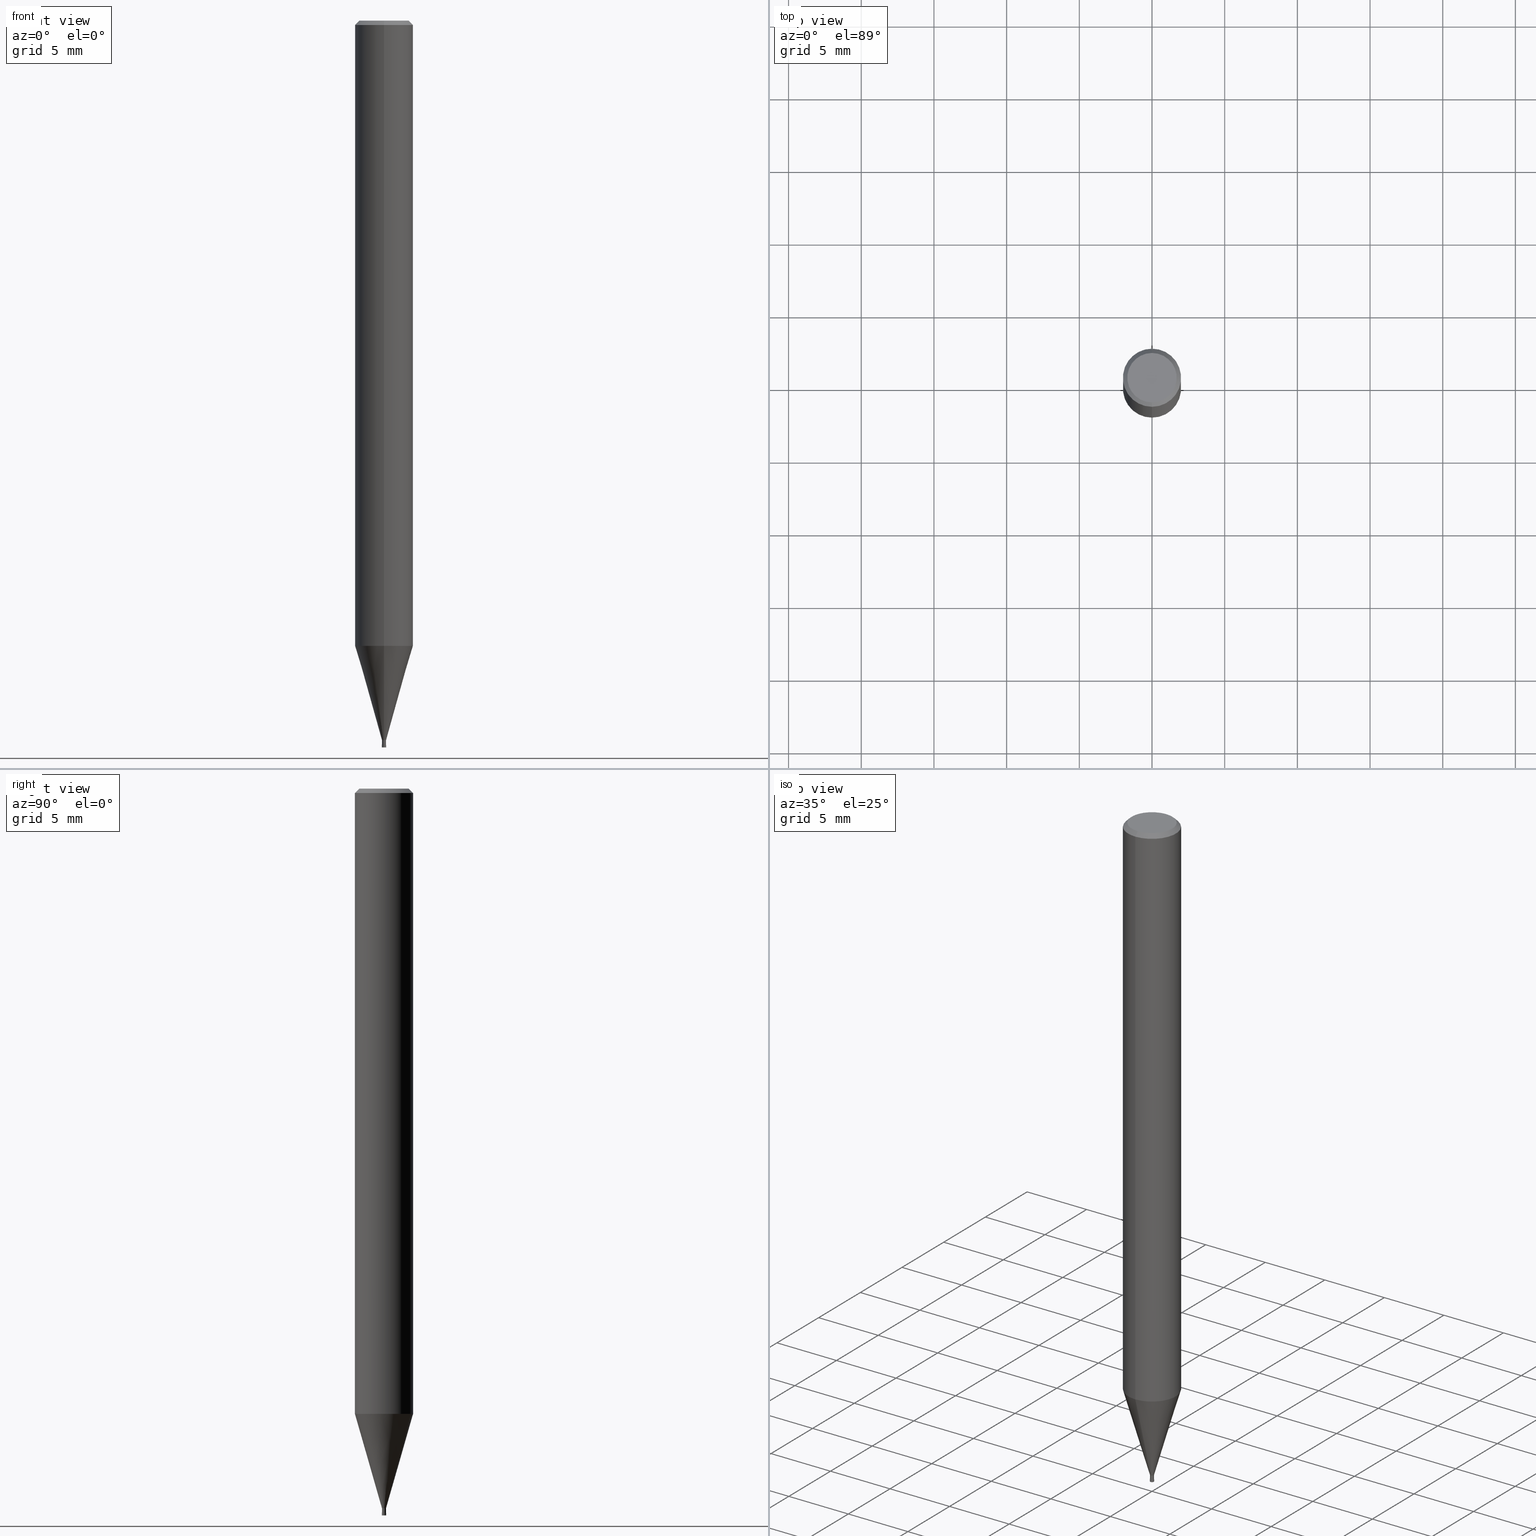
[diagram: canonical four-view strip — front | top / right | iso, engineering-drawing reading convention]
A machine part, canonical four-view strip (front | top / right | iso — engineering-drawing reading convention). The complete STEP part file that produces these views, byte-faithful:
ISO-10303-21;
HEADER;
FILE_DESCRIPTION(('no description'),'unknown implementation level');
FILE_NAME('HLRS4003-002-005-Huellk.stp','  ',('CIMSOURCE GmbH'),('CADClick - KiM GmbH - www.kimweb.de'),'unknown preprocess','ACIS','unknown authorization');
FILE_SCHEMA(('automotive_design'));
ENDSEC;
DATA;
#1=MECHANICAL_DESIGN_GEOMETRIC_PRESENTATION_REPRESENTATION(' ',(#14,#15,#16,#17,#18,#19,#20,#21,#22,#23,#24,#25,#26,#27,#28,#29,#30,#31,#32,#33,#34,#35,#36,#37,#38,#39,#40,#41,#42,#43,#44,#45,#46,#47,#48,#49,#50,#51,#52,#53,#54,#55,#56,#57,#58,#59,#60,#61,#62,#63,#64,#65,#66,#67,#68,#69,#70,#71,#72,#73,#74,#75,#76,#77,#78,#79,#80,#81,#82,#83,#84,#85,#86,#87,#88,#89,#90,#91,#92,#93,#94,#95,#96,#97,#98,#99,#100,#101,#102,#103,#104,#105,#106,#107,#108,#109,#110,#111,#112,#113,#114,#115,#116,#117,#118,#119,#120,#121),#10);
#2=PRODUCT_DEFINITION_CONTEXT('',#122,'design');
#3=APPLICATION_PROTOCOL_DEFINITION('INTERNATIONAL STANDARD','automotive_design',1994,#122);
#4=PRODUCT_CATEGORY_RELATIONSHIP('NONE','NONE',#123,#124);
#5=SHAPE_DEFINITION_REPRESENTATION(#125,#126);
#6=PRODUCT_DEFINITION_CONTEXT('',#127,'design');
#7=APPLICATION_PROTOCOL_DEFINITION('INTERNATIONAL STANDARD','automotive_design',1994,#127);
#8=PRODUCT_CATEGORY_RELATIONSHIP('NONE','NONE',#128,#129);
#9=SHAPE_DEFINITION_REPRESENTATION(#130,#131);
#10= (GEOMETRIC_REPRESENTATION_CONTEXT(3)GLOBAL_UNCERTAINTY_ASSIGNED_CONTEXT((#134))GLOBAL_UNIT_ASSIGNED_CONTEXT((#136,#137,#138))REPRESENTATION_CONTEXT('NONE','WORKSPACE'));
#14=STYLED_ITEM('',(#140),#141);
#15=STYLED_ITEM('',(#142),#143);
#16=STYLED_ITEM('',(#144),#145);
#17=STYLED_ITEM('',(#146),#147);
#18=STYLED_ITEM('',(#148),#149);
#19=STYLED_ITEM('',(#150),#151);
#20=STYLED_ITEM('',(#152),#153);
#21=STYLED_ITEM('',(#154),#155);
#22=STYLED_ITEM('',(#156),#157);
#23=STYLED_ITEM('',(#158),#159);
#24=STYLED_ITEM('',(#160),#161);
#25=STYLED_ITEM('',(#162),#163);
#26=STYLED_ITEM('',(#164),#165);
#27=STYLED_ITEM('',(#166),#167);
#28=STYLED_ITEM('',(#168),#169);
#29=STYLED_ITEM('',(#170),#171);
#30=STYLED_ITEM('',(#172),#173);
#31=STYLED_ITEM('',(#174),#175);
#32=STYLED_ITEM('',(#176),#177);
#33=STYLED_ITEM('',(#178),#179);
#34=STYLED_ITEM('',(#180),#181);
#35=STYLED_ITEM('',(#182),#183);
#36=STYLED_ITEM('',(#184),#185);
#37=STYLED_ITEM('',(#186),#187);
#38=STYLED_ITEM('',(#188),#189);
#39=STYLED_ITEM('',(#190),#191);
#40=STYLED_ITEM('',(#192),#193);
#41=STYLED_ITEM('',(#194),#195);
#42=STYLED_ITEM('',(#196),#197);
#43=STYLED_ITEM('',(#198),#199);
#44=STYLED_ITEM('',(#200),#201);
#45=STYLED_ITEM('',(#202),#203);
#46=STYLED_ITEM('',(#204),#205);
#47=STYLED_ITEM('',(#206),#207);
#48=STYLED_ITEM('',(#208),#209);
#49=STYLED_ITEM('',(#210),#211);
#50=STYLED_ITEM('',(#212),#213);
#51=STYLED_ITEM('',(#214),#215);
#52=STYLED_ITEM('',(#216),#217);
#53=STYLED_ITEM('',(#218),#219);
#54=STYLED_ITEM('',(#220),#221);
#55=STYLED_ITEM('',(#222),#223);
#56=STYLED_ITEM('',(#224),#225);
#57=STYLED_ITEM('',(#226),#227);
#58=STYLED_ITEM('',(#228),#229);
#59=STYLED_ITEM('',(#230),#231);
#60=STYLED_ITEM('',(#232),#233);
#61=STYLED_ITEM('',(#234),#235);
#62=STYLED_ITEM('',(#236),#237);
#63=STYLED_ITEM('',(#238),#239);
#64=STYLED_ITEM('',(#240),#241);
#65=STYLED_ITEM('',(#242),#243);
#66=STYLED_ITEM('',(#244),#245);
#67=STYLED_ITEM('',(#246),#247);
#68=STYLED_ITEM('',(#248),#249);
#69=STYLED_ITEM('',(#250),#251);
#70=STYLED_ITEM('',(#252),#253);
#71=STYLED_ITEM('',(#254),#255);
#72=STYLED_ITEM('',(#256),#257);
#73=STYLED_ITEM('',(#258),#259);
#74=STYLED_ITEM('',(#260),#261);
#75=STYLED_ITEM('',(#262),#263);
#76=STYLED_ITEM('',(#264),#265);
#77=STYLED_ITEM('',(#266),#267);
#78=STYLED_ITEM('',(#268),#269);
#79=STYLED_ITEM('',(#270),#271);
#80=STYLED_ITEM('',(#272),#273);
#81=STYLED_ITEM('',(#274),#275);
#82=STYLED_ITEM('',(#276),#277);
#83=STYLED_ITEM('',(#278),#279);
#84=STYLED_ITEM('',(#280),#281);
#85=STYLED_ITEM('',(#282),#283);
#86=STYLED_ITEM('',(#284),#285);
#87=STYLED_ITEM('',(#286),#287);
#88=STYLED_ITEM('',(#288),#289);
#89=STYLED_ITEM('',(#290),#291);
#90=STYLED_ITEM('',(#292),#293);
#91=STYLED_ITEM('',(#294),#295);
#92=STYLED_ITEM('',(#296),#297);
#93=STYLED_ITEM('',(#298),#299);
#94=STYLED_ITEM('',(#300),#301);
#95=STYLED_ITEM('',(#302),#303);
#96=STYLED_ITEM('',(#304),#305);
#97=STYLED_ITEM('',(#306),#307);
#98=STYLED_ITEM('',(#308),#309);
#99=STYLED_ITEM('',(#310),#311);
#100=STYLED_ITEM('',(#312),#313);
#101=STYLED_ITEM('',(#314),#315);
#102=STYLED_ITEM('',(#316),#317);
#103=STYLED_ITEM('',(#318),#319);
#104=STYLED_ITEM('',(#320),#321);
#105=STYLED_ITEM('',(#322),#323);
#106=STYLED_ITEM('',(#324),#325);
#107=STYLED_ITEM('',(#326),#327);
#108=STYLED_ITEM('',(#328),#329);
#109=STYLED_ITEM('',(#330),#331);
#110=STYLED_ITEM('',(#332),#333);
#111=STYLED_ITEM('',(#334),#335);
#112=STYLED_ITEM('',(#336),#337);
#113=STYLED_ITEM('',(#338),#339);
#114=STYLED_ITEM('',(#340),#341);
#115=STYLED_ITEM('',(#342),#343);
#116=STYLED_ITEM('',(#344),#345);
#117=STYLED_ITEM('',(#346),#347);
#118=STYLED_ITEM('',(#348),#349);
#119=STYLED_ITEM('',(#350),#351);
#120=STYLED_ITEM('',(#352),#353);
#121=STYLED_ITEM('',(#354),#355);
#122=APPLICATION_CONTEXT(' ');
#123=PRODUCT_CATEGORY('part','NONE');
#124=PRODUCT_RELATED_PRODUCT_CATEGORY('detail',' ',(#356));
#125=PRODUCT_DEFINITION_SHAPE('NONE','NONE',#357);
#126=ADVANCED_BREP_SHAPE_REPRESENTATION('1',(#159,#358),#10);
#127=APPLICATION_CONTEXT(' ');
#128=PRODUCT_CATEGORY('part','NONE');
#129=PRODUCT_RELATED_PRODUCT_CATEGORY('detail',' ',(#359));
#130=PRODUCT_DEFINITION_SHAPE('NONE','NONE',#360);
#131=ADVANCED_BREP_SHAPE_REPRESENTATION('2',(#219,#361),#10);
#134=UNCERTAINTY_MEASURE_WITH_UNIT(LENGTH_MEASURE(1.0E-006),#136,'','');
#136= (CONVERSION_BASED_UNIT('MILLIMETRE',#364)LENGTH_UNIT()NAMED_UNIT(#367));
#137= (NAMED_UNIT(#369)PLANE_ANGLE_UNIT()SI_UNIT($,.RADIAN.));
#138= (NAMED_UNIT(#369)SOLID_ANGLE_UNIT()SI_UNIT($,.STERADIAN.));
#140=PRESENTATION_STYLE_ASSIGNMENT((#375));
#141=EDGE_CURVE('',#145,#209,#376,.T.);
#142=PRESENTATION_STYLE_ASSIGNMENT((#377));
#143=EDGE_CURVE('',#165,#347,#378,.T.);
#144=PRESENTATION_STYLE_ASSIGNMENT((#379));
#145=VERTEX_POINT('',#380);
#146=PRESENTATION_STYLE_ASSIGNMENT((#381));
#147=EDGE_CURVE('',#243,#285,#382,.T.);
#148=PRESENTATION_STYLE_ASSIGNMENT((#383));
#149=ADVANCED_FACE('',(#384),#385,.T.);
#150=PRESENTATION_STYLE_ASSIGNMENT((#386));
#151=ADVANCED_FACE('',(#387),#388,.F.);
#152=PRESENTATION_STYLE_ASSIGNMENT((#389));
#153=ADVANCED_FACE('',(#390),#391,.T.);
#154=PRESENTATION_STYLE_ASSIGNMENT((#392));
#155=ADVANCED_FACE('',(#393),#394,.T.);
#156=PRESENTATION_STYLE_ASSIGNMENT((#395));
#157=VERTEX_POINT('',#396);
#158=PRESENTATION_STYLE_ASSIGNMENT((#397));
#159=MANIFOLD_SOLID_BREP('1',#398);
#160=PRESENTATION_STYLE_ASSIGNMENT((#399));
#161=ADVANCED_FACE('',(#400),#401,.F.);
#162=PRESENTATION_STYLE_ASSIGNMENT((#402));
#163=ADVANCED_FACE('',(#403,#404),#405,.T.);
#164=PRESENTATION_STYLE_ASSIGNMENT((#406));
#165=VERTEX_POINT('',#407);
#166=PRESENTATION_STYLE_ASSIGNMENT((#408));
#167=EDGE_CURVE('',#277,#245,#409,.T.);
#168=PRESENTATION_STYLE_ASSIGNMENT((#410));
#169=EDGE_CURVE('',#267,#277,#411,.T.);
#170=PRESENTATION_STYLE_ASSIGNMENT((#412));
#171=EDGE_CURVE('',#245,#209,#413,.T.);
#172=PRESENTATION_STYLE_ASSIGNMENT((#414));
#173=EDGE_CURVE('',#243,#223,#415,.T.);
#174=PRESENTATION_STYLE_ASSIGNMENT((#416));
#175=ADVANCED_FACE('',(#417),#418,.F.);
#176=PRESENTATION_STYLE_ASSIGNMENT((#419));
#177=EDGE_CURVE('',#295,#331,#420,.T.);
#178=PRESENTATION_STYLE_ASSIGNMENT((#421));
#179=EDGE_CURVE('',#281,#211,#422,.T.);
#180=PRESENTATION_STYLE_ASSIGNMENT((#423));
#181=EDGE_CURVE('',#335,#145,#424,.T.);
#182=PRESENTATION_STYLE_ASSIGNMENT((#425));
#183=EDGE_CURVE('',#145,#335,#426,.T.);
#184=PRESENTATION_STYLE_ASSIGNMENT((#427));
#185=EDGE_CURVE('',#285,#339,#428,.T.);
#186=PRESENTATION_STYLE_ASSIGNMENT((#429));
#187=EDGE_CURVE('',#165,#211,#430,.T.);
#188=PRESENTATION_STYLE_ASSIGNMENT((#431));
#189=EDGE_CURVE('',#195,#251,#432,.T.);
#190=PRESENTATION_STYLE_ASSIGNMENT((#433));
#191=EDGE_CURVE('',#339,#275,#434,.T.);
#192=PRESENTATION_STYLE_ASSIGNMENT((#435));
#193=EDGE_CURVE('',#211,#281,#436,.T.);
#194=PRESENTATION_STYLE_ASSIGNMENT((#437));
#195=VERTEX_POINT('',#438);
#196=PRESENTATION_STYLE_ASSIGNMENT((#439));
#197=ADVANCED_FACE('',(#440),#441,.T.);
#198=PRESENTATION_STYLE_ASSIGNMENT((#442));
#199=EDGE_CURVE('',#201,#327,#443,.T.);
#200=PRESENTATION_STYLE_ASSIGNMENT((#444));
#201=VERTEX_POINT('',#445);
#202=PRESENTATION_STYLE_ASSIGNMENT((#446));
#203=ADVANCED_FACE('',(#447),#448,.T.);
#204=PRESENTATION_STYLE_ASSIGNMENT((#449));
#205=EDGE_CURVE('',#331,#259,#450,.T.);
#206=PRESENTATION_STYLE_ASSIGNMENT((#451));
#207=VERTEX_POINT('',#452);
#208=PRESENTATION_STYLE_ASSIGNMENT((#453));
#209=VERTEX_POINT('',#454);
#210=PRESENTATION_STYLE_ASSIGNMENT((#455));
#211=VERTEX_POINT('',#456);
#212=PRESENTATION_STYLE_ASSIGNMENT((#457));
#213=EDGE_CURVE('',#327,#201,#458,.T.);
#214=PRESENTATION_STYLE_ASSIGNMENT((#459));
#215=EDGE_CURVE('',#305,#315,#460,.T.);
#216=PRESENTATION_STYLE_ASSIGNMENT((#461));
#217=EDGE_CURVE('',#347,#305,#462,.T.);
#218=PRESENTATION_STYLE_ASSIGNMENT((#463));
#219=MANIFOLD_SOLID_BREP('2',#464);
#220=PRESENTATION_STYLE_ASSIGNMENT((#465));
#221=ADVANCED_FACE('',(#466),#467,.T.);
#222=PRESENTATION_STYLE_ASSIGNMENT((#468));
#223=VERTEX_POINT('',#469);
#224=PRESENTATION_STYLE_ASSIGNMENT((#470));
#225=ADVANCED_FACE('',(#471),#472,.T.);
#226=PRESENTATION_STYLE_ASSIGNMENT((#473));
#227=EDGE_CURVE('',#157,#269,#474,.T.);
#228=PRESENTATION_STYLE_ASSIGNMENT((#475));
#229=EDGE_CURVE('',#275,#339,#476,.T.);
#230=PRESENTATION_STYLE_ASSIGNMENT((#477));
#231=EDGE_CURVE('',#277,#267,#478,.T.);
#232=PRESENTATION_STYLE_ASSIGNMENT((#479));
#233=ADVANCED_FACE('',(#480),#481,.T.);
#234=PRESENTATION_STYLE_ASSIGNMENT((#482));
#235=EDGE_CURVE('',#293,#223,#483,.T.);
#236=PRESENTATION_STYLE_ASSIGNMENT((#484));
#237=ADVANCED_FACE('',(#485,#486),#487,.T.);
#238=PRESENTATION_STYLE_ASSIGNMENT((#488));
#239=EDGE_CURVE('',#281,#347,#489,.T.);
#240=PRESENTATION_STYLE_ASSIGNMENT((#490));
#241=ADVANCED_FACE('',(#491),#492,.T.);
#242=PRESENTATION_STYLE_ASSIGNMENT((#493));
#243=VERTEX_POINT('',#494);
#244=PRESENTATION_STYLE_ASSIGNMENT((#495));
#245=VERTEX_POINT('',#496);
#246=PRESENTATION_STYLE_ASSIGNMENT((#497));
#247=ADVANCED_FACE('',(#498),#499,.T.);
#248=PRESENTATION_STYLE_ASSIGNMENT((#500));
#249=EDGE_CURVE('',#251,#195,#501,.T.);
#250=PRESENTATION_STYLE_ASSIGNMENT((#502));
#251=VERTEX_POINT('',#503);
#252=PRESENTATION_STYLE_ASSIGNMENT((#504));
#253=EDGE_CURVE('',#209,#267,#505,.T.);
#254=PRESENTATION_STYLE_ASSIGNMENT((#506));
#255=ADVANCED_FACE('',(#507),#508,.T.);
#256=PRESENTATION_STYLE_ASSIGNMENT((#509));
#257=VERTEX_POINT('',#510);
#258=PRESENTATION_STYLE_ASSIGNMENT((#511));
#259=VERTEX_POINT('',#512);
#260=PRESENTATION_STYLE_ASSIGNMENT((#513));
#261=ADVANCED_FACE('',(#514),#515,.T.);
#262=PRESENTATION_STYLE_ASSIGNMENT((#516));
#263=EDGE_CURVE('',#257,#345,#517,.T.);
#264=PRESENTATION_STYLE_ASSIGNMENT((#518));
#265=EDGE_CURVE('',#207,#295,#519,.T.);
#266=PRESENTATION_STYLE_ASSIGNMENT((#520));
#267=VERTEX_POINT('',#521);
#268=PRESENTATION_STYLE_ASSIGNMENT((#522));
#269=VERTEX_POINT('',#523);
#270=PRESENTATION_STYLE_ASSIGNMENT((#524));
#271=EDGE_CURVE('',#223,#243,#525,.T.);
#272=PRESENTATION_STYLE_ASSIGNMENT((#526));
#273=EDGE_CURVE('',#275,#293,#527,.T.);
#274=PRESENTATION_STYLE_ASSIGNMENT((#528));
#275=VERTEX_POINT('',#529);
#276=PRESENTATION_STYLE_ASSIGNMENT((#530));
#277=VERTEX_POINT('',#531);
#278=PRESENTATION_STYLE_ASSIGNMENT((#532));
#279=ADVANCED_FACE('',(#533),#534,.F.);
#280=PRESENTATION_STYLE_ASSIGNMENT((#535));
#281=VERTEX_POINT('',#536);
#282=PRESENTATION_STYLE_ASSIGNMENT((#537));
#283=EDGE_CURVE('',#269,#295,#538,.T.);
#284=PRESENTATION_STYLE_ASSIGNMENT((#539));
#285=VERTEX_POINT('',#540);
#286=PRESENTATION_STYLE_ASSIGNMENT((#541));
#287=EDGE_CURVE('',#209,#245,#542,.T.);
#288=PRESENTATION_STYLE_ASSIGNMENT((#543));
#289=EDGE_CURVE('',#345,#257,#544,.T.);
#290=PRESENTATION_STYLE_ASSIGNMENT((#545));
#291=ADVANCED_FACE('',(#546,#547),#548,.T.);
#292=PRESENTATION_STYLE_ASSIGNMENT((#549));
#293=VERTEX_POINT('',#550);
#294=PRESENTATION_STYLE_ASSIGNMENT((#551));
#295=VERTEX_POINT('',#552);
#296=PRESENTATION_STYLE_ASSIGNMENT((#553));
#297=EDGE_CURVE('',#251,#327,#554,.T.);
#298=PRESENTATION_STYLE_ASSIGNMENT((#555));
#299=EDGE_CURVE('',#315,#305,#556,.T.);
#300=PRESENTATION_STYLE_ASSIGNMENT((#557));
#301=EDGE_CURVE('',#345,#327,#558,.T.);
#302=PRESENTATION_STYLE_ASSIGNMENT((#559));
#303=EDGE_CURVE('',#245,#335,#560,.T.);
#304=PRESENTATION_STYLE_ASSIGNMENT((#561));
#305=VERTEX_POINT('',#562);
#306=PRESENTATION_STYLE_ASSIGNMENT((#563));
#307=EDGE_CURVE('',#259,#207,#564,.T.);
#308=PRESENTATION_STYLE_ASSIGNMENT((#565));
#309=ADVANCED_FACE('',(#566,#567),#568,.T.);
#310=PRESENTATION_STYLE_ASSIGNMENT((#569));
#311=EDGE_CURVE('',#201,#195,#570,.T.);
#312=PRESENTATION_STYLE_ASSIGNMENT((#571));
#313=EDGE_CURVE('',#293,#285,#572,.T.);
#314=PRESENTATION_STYLE_ASSIGNMENT((#573));
#315=VERTEX_POINT('',#574);
#316=PRESENTATION_STYLE_ASSIGNMENT((#575));
#317=ADVANCED_FACE('',(#576),#577,.T.);
#318=PRESENTATION_STYLE_ASSIGNMENT((#578));
#319=ADVANCED_FACE('',(#579),#580,.T.);
#320=PRESENTATION_STYLE_ASSIGNMENT((#581));
#321=EDGE_CURVE('',#259,#331,#582,.T.);
#322=PRESENTATION_STYLE_ASSIGNMENT((#583));
#323=ADVANCED_FACE('',(#584),#585,.T.);
#324=PRESENTATION_STYLE_ASSIGNMENT((#586));
#325=EDGE_CURVE('',#347,#165,#587,.T.);
#326=PRESENTATION_STYLE_ASSIGNMENT((#588));
#327=VERTEX_POINT('',#589);
#328=PRESENTATION_STYLE_ASSIGNMENT((#590));
#329=EDGE_CURVE('',#295,#207,#591,.T.);
#330=PRESENTATION_STYLE_ASSIGNMENT((#592));
#331=VERTEX_POINT('',#593);
#332=PRESENTATION_STYLE_ASSIGNMENT((#594));
#333=EDGE_CURVE('',#315,#165,#595,.T.);
#334=PRESENTATION_STYLE_ASSIGNMENT((#596));
#335=VERTEX_POINT('',#597);
#336=PRESENTATION_STYLE_ASSIGNMENT((#598));
#337=EDGE_CURVE('',#201,#257,#599,.T.);
#338=PRESENTATION_STYLE_ASSIGNMENT((#600));
#339=VERTEX_POINT('',#601);
#340=PRESENTATION_STYLE_ASSIGNMENT((#602));
#341=ADVANCED_FACE('',(#603),#604,.T.);
#342=PRESENTATION_STYLE_ASSIGNMENT((#605));
#343=EDGE_CURVE('',#285,#293,#606,.T.);
#344=PRESENTATION_STYLE_ASSIGNMENT((#607));
#345=VERTEX_POINT('',#608);
#346=PRESENTATION_STYLE_ASSIGNMENT((#609));
#347=VERTEX_POINT('',#610);
#348=PRESENTATION_STYLE_ASSIGNMENT((#611));
#349=EDGE_CURVE('',#269,#157,#612,.T.);
#350=PRESENTATION_STYLE_ASSIGNMENT((#613));
#351=ADVANCED_FACE('',(#614),#615,.T.);
#352=PRESENTATION_STYLE_ASSIGNMENT((#616));
#353=ADVANCED_FACE('',(#617),#618,.T.);
#354=PRESENTATION_STYLE_ASSIGNMENT((#619));
#355=EDGE_CURVE('',#207,#157,#620,.T.);
#356=PRODUCT('1','1','PART-1-DESC',(#621));
#357=PRODUCT_DEFINITION('NONE','NONE',#622,#2);
#358=AXIS2_PLACEMENT_3D('',#623,#624,#625);
#359=PRODUCT('2','2','PART-2-DESC',(#626));
#360=PRODUCT_DEFINITION('NONE','NONE',#627,#6);
#361=AXIS2_PLACEMENT_3D('',#628,#629,#630);
#364=LENGTH_MEASURE_WITH_UNIT(LENGTH_MEASURE(1.0),#631);
#367=DIMENSIONAL_EXPONENTS(1.0,0.0,0.0,0.0,0.0,0.0,0.0);
#369=DIMENSIONAL_EXPONENTS(0.0,0.0,0.0,0.0,0.0,0.0,0.0);
#375=CURVE_STYLE('',#632,POSITIVE_LENGTH_MEASURE(1.0E-006),#633);
#376=LINE('',#634,#635);
#377=CURVE_STYLE('',#636,POSITIVE_LENGTH_MEASURE(1.0E-006),#637);
#378=CIRCLE('',#638,0.13995);
#379=POINT_STYLE(' ',#639,POSITIVE_LENGTH_MEASURE(1.0E-006),#640);
#380=CARTESIAN_POINT('',(8.26609288830105E-018,-0.0675,-49.99));
#381=CURVE_STYLE('',#641,POSITIVE_LENGTH_MEASURE(1.0E-006),#642);
#382=LINE('',#643,#644);
#383=SURFACE_STYLE_USAGE(.BOTH.,#645);
#384=FACE_OUTER_BOUND('',#646,.T.);
#385=CONICAL_SURFACE('',#647,1.06995,0.27923596926092);
#386=SURFACE_STYLE_USAGE(.BOTH.,#648);
#387=FACE_OUTER_BOUND('',#649,.T.);
#388=CYLINDRICAL_SURFACE('',#650,0.0675);
#389=SURFACE_STYLE_USAGE(.BOTH.,#651);
#390=FACE_OUTER_BOUND('',#652,.T.);
#391=CONICAL_SURFACE('',#653,1.85,0.785398163397453);
#392=SURFACE_STYLE_USAGE(.BOTH.,#654);
#393=FACE_OUTER_BOUND('',#655,.T.);
#394=CONICAL_SURFACE('',#656,1.06995,0.27923596926092);
#395=POINT_STYLE(' ',#657,POSITIVE_LENGTH_MEASURE(1.0E-006),#658);
#396=CARTESIAN_POINT('',(0.0,0.0675,-49.945));
#397=SURFACE_STYLE_USAGE(.BOTH.,#659);
#398=CLOSED_SHELL('',(#317,#261,#221,#149,#233,#153,#163,#255,#341,#203,#155,#197,#309,#247,#353,#323));
#399=SURFACE_STYLE_USAGE(.BOTH.,#660);
#400=FACE_OUTER_BOUND('',#661,.T.);
#401=CYLINDRICAL_SURFACE('',#662,0.0675);
#402=SURFACE_STYLE_USAGE(.BOTH.,#663);
#403=FACE_OUTER_BOUND('',#664,.T.);
#404=FACE_BOUND('',#665,.T.);
#405=PLANE('',#666);
#406=POINT_STYLE(' ',#667,POSITIVE_LENGTH_MEASURE(1.0E-006),#668);
#407=CARTESIAN_POINT('',(0.0,0.13995,-49.49));
#408=CURVE_STYLE('',#669,POSITIVE_LENGTH_MEASURE(1.0E-006),#670);
#409=LINE('',#671,#672);
#410=CURVE_STYLE('',#673,POSITIVE_LENGTH_MEASURE(1.0E-006),#674);
#411=CIRCLE('',#675,0.1449);
#412=CURVE_STYLE('',#676,POSITIVE_LENGTH_MEASURE(1.0E-006),#677);
#413=CIRCLE('',#678,0.0675);
#414=CURVE_STYLE('',#679,POSITIVE_LENGTH_MEASURE(1.0E-006),#680);
#415=CIRCLE('',#681,2.0);
#416=SURFACE_STYLE_USAGE(.BOTH.,#682);
#417=FACE_OUTER_BOUND('',#683,.T.);
#418=CONICAL_SURFACE('',#684,0.1062,1.44230912436268);
#419=CURVE_STYLE('',#685,POSITIVE_LENGTH_MEASURE(1.0E-006),#686);
#420=LINE('',#687,#688);
#421=CURVE_STYLE('',#689,POSITIVE_LENGTH_MEASURE(1.0E-006),#690);
#422=CIRCLE('',#691,0.13995);
#423=CURVE_STYLE('',#692,POSITIVE_LENGTH_MEASURE(1.0E-006),#693);
#424=CIRCLE('',#694,0.0675);
#425=CURVE_STYLE('',#695,POSITIVE_LENGTH_MEASURE(1.0E-006),#696);
#426=CIRCLE('',#697,0.0675);
#427=CURVE_STYLE('',#698,POSITIVE_LENGTH_MEASURE(1.0E-006),#699);
#428=LINE('',#700,#701);
#429=CURVE_STYLE('',#702,POSITIVE_LENGTH_MEASURE(1.0E-006),#703);
#430=LINE('',#704,#705);
#431=CURVE_STYLE('',#706,POSITIVE_LENGTH_MEASURE(1.0E-006),#707);
#432=CIRCLE('',#708,0.13);
#433=CURVE_STYLE('',#709,POSITIVE_LENGTH_MEASURE(1.0E-006),#710);
#434=CIRCLE('',#711,1.7);
#435=CURVE_STYLE('',#712,POSITIVE_LENGTH_MEASURE(1.0E-006),#713);
#436=CIRCLE('',#714,0.13995);
#437=POINT_STYLE(' ',#715,POSITIVE_LENGTH_MEASURE(1.0E-006),#716);
#438=CARTESIAN_POINT('',(1.59198825996909E-017,-0.13,-49.99));
#439=SURFACE_STYLE_USAGE(.BOTH.,#717);
#440=FACE_OUTER_BOUND('',#718,.T.);
#441=CYLINDRICAL_SURFACE('',#719,0.13995);
#442=CURVE_STYLE('',#720,POSITIVE_LENGTH_MEASURE(1.0E-006),#721);
#443=CIRCLE('',#722,0.15);
#444=POINT_STYLE(' ',#723,POSITIVE_LENGTH_MEASURE(1.0E-006),#724);
#445=CARTESIAN_POINT('',(1.83690953073357E-017,-0.15,-49.97));
#446=SURFACE_STYLE_USAGE(.BOTH.,#725);
#447=FACE_OUTER_BOUND('',#726,.T.);
#448=CYLINDRICAL_SURFACE('',#727,2.0);
#449=CURVE_STYLE('',#728,POSITIVE_LENGTH_MEASURE(1.0E-006),#729);
#450=CIRCLE('',#730,0.14495);
#451=POINT_STYLE(' ',#731,POSITIVE_LENGTH_MEASURE(1.0E-006),#732);
#452=CARTESIAN_POINT('',(0.0,0.0675,-49.82));
#453=POINT_STYLE(' ',#733,POSITIVE_LENGTH_MEASURE(1.0E-006),#734);
#454=CARTESIAN_POINT('',(8.26609288830105E-018,-0.0675,-49.82));
#455=POINT_STYLE(' ',#735,POSITIVE_LENGTH_MEASURE(1.0E-006),#736);
#456=CARTESIAN_POINT('',(0.0,0.13995,-49.81));
#457=CURVE_STYLE('',#737,POSITIVE_LENGTH_MEASURE(1.0E-006),#738);
#458=CIRCLE('',#739,0.15);
#459=CURVE_STYLE('',#740,POSITIVE_LENGTH_MEASURE(1.0E-006),#741);
#460=CIRCLE('',#742,1.99995);
#461=CURVE_STYLE('',#743,POSITIVE_LENGTH_MEASURE(1.0E-006),#744);
#462=LINE('',#745,#746);
#463=SURFACE_STYLE_USAGE(.BOTH.,#747);
#464=CLOSED_SHELL('',(#151,#241,#319,#175,#279,#237,#225,#351,#291,#161));
#465=SURFACE_STYLE_USAGE(.BOTH.,#748);
#466=FACE_OUTER_BOUND('',#749,.T.);
#467=CYLINDRICAL_SURFACE('',#750,0.13995);
#468=POINT_STYLE(' ',#751,POSITIVE_LENGTH_MEASURE(1.0E-006),#752);
#469=CARTESIAN_POINT('',(0.0,2.0,-43.003));
#470=SURFACE_STYLE_USAGE(.BOTH.,#753);
#471=FACE_OUTER_BOUND('',#754,.T.);
#472=CONICAL_SURFACE('',#755,0.14995,0.000624999918619742);
#473=CURVE_STYLE('',#756,POSITIVE_LENGTH_MEASURE(1.0E-006),#757);
#474=CIRCLE('',#758,0.0675);
#475=CURVE_STYLE('',#759,POSITIVE_LENGTH_MEASURE(1.0E-006),#760);
#476=CIRCLE('',#761,1.7);
#477=CURVE_STYLE('',#762,POSITIVE_LENGTH_MEASURE(1.0E-006),#763);
#478=CIRCLE('',#764,0.1449);
#479=SURFACE_STYLE_USAGE(.BOTH.,#765);
#480=FACE_OUTER_BOUND('',#766,.T.);
#481=CYLINDRICAL_SURFACE('',#767,2.0);
#482=CURVE_STYLE('',#768,POSITIVE_LENGTH_MEASURE(1.0E-006),#769);
#483=LINE('',#770,#771);
#484=SURFACE_STYLE_USAGE(.BOTH.,#772);
#485=FACE_OUTER_BOUND('',#773,.T.);
#486=FACE_BOUND('',#774,.T.);
#487=PLANE('',#775);
#488=CURVE_STYLE('',#776,POSITIVE_LENGTH_MEASURE(1.0E-006),#777);
#489=LINE('',#778,#779);
#490=SURFACE_STYLE_USAGE(.BOTH.,#780);
#491=FACE_OUTER_BOUND('',#781,.T.);
#492=TOROIDAL_SURFACE('',#782,0.13,0.0199999999999999);
#493=POINT_STYLE(' ',#783,POSITIVE_LENGTH_MEASURE(1.0E-006),#784);
#494=CARTESIAN_POINT('',(2.44921270764475E-016,-2.0,-43.003));
#495=POINT_STYLE(' ',#785,POSITIVE_LENGTH_MEASURE(1.0E-006),#786);
#496=CARTESIAN_POINT('',(0.0,0.0675,-49.82));
#497=SURFACE_STYLE_USAGE(.BOTH.,#787);
#498=FACE_OUTER_BOUND('',#788,.T.);
#499=CONICAL_SURFACE('',#789,0.106225,1.44239116379722);
#500=CURVE_STYLE('',#790,POSITIVE_LENGTH_MEASURE(1.0E-006),#791);
#501=CIRCLE('',#792,0.13);
#502=POINT_STYLE(' ',#793,POSITIVE_LENGTH_MEASURE(1.0E-006),#794);
#503=CARTESIAN_POINT('',(0.0,0.13,-49.99));
#504=CURVE_STYLE('',#795,POSITIVE_LENGTH_MEASURE(1.0E-006),#796);
#505=LINE('',#797,#798);
#506=SURFACE_STYLE_USAGE(.BOTH.,#799);
#507=FACE_OUTER_BOUND('',#800,.T.);
#508=PLANE('',#801);
#509=POINT_STYLE(' ',#802,POSITIVE_LENGTH_MEASURE(1.0E-006),#803);
#510=CARTESIAN_POINT('',(1.83568492437974E-017,-0.1499,-49.81));
#511=POINT_STYLE(' ',#804,POSITIVE_LENGTH_MEASURE(1.0E-006),#805);
#512=CARTESIAN_POINT('',(0.0,0.14495,-49.81));
#513=SURFACE_STYLE_USAGE(.BOTH.,#806);
#514=FACE_OUTER_BOUND('',#807,.T.);
#515=CONICAL_SURFACE('',#808,0.106225,1.44239116379722);
#516=CURVE_STYLE('',#809,POSITIVE_LENGTH_MEASURE(1.0E-006),#810);
#517=CIRCLE('',#811,0.1499);
#518=CURVE_STYLE('',#812,POSITIVE_LENGTH_MEASURE(1.0E-006),#813);
#519=CIRCLE('',#814,0.0675);
#520=POINT_STYLE(' ',#815,POSITIVE_LENGTH_MEASURE(1.0E-006),#816);
#521=CARTESIAN_POINT('',(1.77445460668862E-017,-0.1449,-49.81));
#522=POINT_STYLE(' ',#817,POSITIVE_LENGTH_MEASURE(1.0E-006),#818);
#523=CARTESIAN_POINT('',(8.26609288830105E-018,-0.0675,-49.945));
#524=CURVE_STYLE('',#819,POSITIVE_LENGTH_MEASURE(1.0E-006),#820);
#525=CIRCLE('',#821,2.0);
#526=CURVE_STYLE('',#822,POSITIVE_LENGTH_MEASURE(1.0E-006),#823);
#527=LINE('',#824,#825);
#528=POINT_STYLE(' ',#826,POSITIVE_LENGTH_MEASURE(1.0E-006),#827);
#529=CARTESIAN_POINT('',(0.0,1.7,0.00999999999999801));
#530=POINT_STYLE(' ',#828,POSITIVE_LENGTH_MEASURE(1.0E-006),#829);
#531=CARTESIAN_POINT('',(0.0,0.1449,-49.81));
#532=SURFACE_STYLE_USAGE(.BOTH.,#830);
#533=FACE_OUTER_BOUND('',#831,.T.);
#534=CONICAL_SURFACE('',#832,0.1062,1.44230912436268);
#535=POINT_STYLE(' ',#833,POSITIVE_LENGTH_MEASURE(1.0E-006),#834);
#536=CARTESIAN_POINT('',(1.71383659217442E-017,-0.13995,-49.81));
#537=CURVE_STYLE('',#835,POSITIVE_LENGTH_MEASURE(1.0E-006),#836);
#538=LINE('',#837,#838);
#539=POINT_STYLE(' ',#839,POSITIVE_LENGTH_MEASURE(1.0E-006),#840);
#540=CARTESIAN_POINT('',(2.44921270764475E-016,-2.0,-0.289999999999999));
#541=CURVE_STYLE('',#841,POSITIVE_LENGTH_MEASURE(1.0E-006),#842);
#542=CIRCLE('',#843,0.0675);
#543=CURVE_STYLE('',#844,POSITIVE_LENGTH_MEASURE(1.0E-006),#845);
#544=CIRCLE('',#846,0.1499);
#545=SURFACE_STYLE_USAGE(.BOTH.,#847);
#546=FACE_BOUND('',#848,.T.);
#547=FACE_OUTER_BOUND('',#849,.T.);
#548=PLANE('',#850);
#549=POINT_STYLE(' ',#851,POSITIVE_LENGTH_MEASURE(1.0E-006),#852);
#550=CARTESIAN_POINT('',(0.0,2.0,-0.289999999999999));
#551=POINT_STYLE(' ',#853,POSITIVE_LENGTH_MEASURE(1.0E-006),#854);
#552=CARTESIAN_POINT('',(8.26609288830105E-018,-0.0675,-49.82));
#553=CURVE_STYLE('',#855,POSITIVE_LENGTH_MEASURE(1.0E-006),#856);
#554=CIRCLE('',#857,0.0199999999999999);
#555=CURVE_STYLE('',#858,POSITIVE_LENGTH_MEASURE(1.0E-006),#859);
#556=CIRCLE('',#860,1.99995);
#557=CURVE_STYLE('',#861,POSITIVE_LENGTH_MEASURE(1.0E-006),#862);
#558=LINE('',#863,#864);
#559=CURVE_STYLE('',#865,POSITIVE_LENGTH_MEASURE(1.0E-006),#866);
#560=LINE('',#867,#868);
#561=POINT_STYLE(' ',#869,POSITIVE_LENGTH_MEASURE(1.0E-006),#870);
#562=CARTESIAN_POINT('',(2.44915147732706E-016,-1.99995,-43.003));
#563=CURVE_STYLE('',#871,POSITIVE_LENGTH_MEASURE(1.0E-006),#872);
#564=LINE('',#873,#874);
#565=SURFACE_STYLE_USAGE(.BOTH.,#875);
#566=FACE_OUTER_BOUND('',#876,.T.);
#567=FACE_BOUND('',#877,.T.);
#568=PLANE('',#878);
#569=CURVE_STYLE('',#879,POSITIVE_LENGTH_MEASURE(1.0E-006),#880);
#570=CIRCLE('',#881,0.0199999999999999);
#571=CURVE_STYLE('',#882,POSITIVE_LENGTH_MEASURE(1.0E-006),#883);
#572=CIRCLE('',#884,2.0);
#573=POINT_STYLE(' ',#885,POSITIVE_LENGTH_MEASURE(1.0E-006),#886);
#574=CARTESIAN_POINT('',(0.0,1.99995,-43.003));
#575=SURFACE_STYLE_USAGE(.BOTH.,#887);
#576=FACE_OUTER_BOUND('',#888,.T.);
#577=CYLINDRICAL_SURFACE('',#889,0.0675);
#578=SURFACE_STYLE_USAGE(.BOTH.,#890);
#579=FACE_OUTER_BOUND('',#891,.T.);
#580=CONICAL_SURFACE('',#892,0.14995,0.000624999918619742);
#581=CURVE_STYLE('',#893,POSITIVE_LENGTH_MEASURE(1.0E-006),#894);
#582=CIRCLE('',#895,0.14495);
#583=SURFACE_STYLE_USAGE(.BOTH.,#896);
#584=FACE_OUTER_BOUND('',#897,.T.);
#585=PLANE('',#898);
#586=CURVE_STYLE('',#899,POSITIVE_LENGTH_MEASURE(1.0E-006),#900);
#587=CIRCLE('',#901,0.13995);
#588=POINT_STYLE(' ',#902,POSITIVE_LENGTH_MEASURE(1.0E-006),#903);
#589=CARTESIAN_POINT('',(0.0,0.15,-49.97));
#590=CURVE_STYLE('',#904,POSITIVE_LENGTH_MEASURE(1.0E-006),#905);
#591=CIRCLE('',#906,0.0675);
#592=POINT_STYLE(' ',#907,POSITIVE_LENGTH_MEASURE(1.0E-006),#908);
#593=CARTESIAN_POINT('',(1.77506690986554E-017,-0.14495,-49.81));
#594=CURVE_STYLE('',#909,POSITIVE_LENGTH_MEASURE(1.0E-006),#910);
#595=LINE('',#911,#912);
#596=POINT_STYLE(' ',#913,POSITIVE_LENGTH_MEASURE(1.0E-006),#914);
#597=CARTESIAN_POINT('',(0.0,0.0675,-49.99));
#598=CURVE_STYLE('',#915,POSITIVE_LENGTH_MEASURE(1.0E-006),#916);
#599=LINE('',#917,#918);
#600=POINT_STYLE(' ',#919,POSITIVE_LENGTH_MEASURE(1.0E-006),#920);
#601=CARTESIAN_POINT('',(2.08183080149804E-016,-1.7,0.00999999999999801));
#602=SURFACE_STYLE_USAGE(.BOTH.,#921);
#603=FACE_OUTER_BOUND('',#922,.T.);
#604=CONICAL_SURFACE('',#923,1.85,0.785398163397453);
#605=CURVE_STYLE('',#924,POSITIVE_LENGTH_MEASURE(1.0E-006),#925);
#606=CIRCLE('',#926,2.0);
#607=POINT_STYLE(' ',#927,POSITIVE_LENGTH_MEASURE(1.0E-006),#928);
#608=CARTESIAN_POINT('',(0.0,0.1499,-49.81));
#609=POINT_STYLE(' ',#929,POSITIVE_LENGTH_MEASURE(1.0E-006),#930);
#610=CARTESIAN_POINT('',(1.71383659217442E-017,-0.13995,-49.49));
#611=CURVE_STYLE('',#931,POSITIVE_LENGTH_MEASURE(1.0E-006),#932);
#612=CIRCLE('',#933,0.0675);
#613=SURFACE_STYLE_USAGE(.BOTH.,#934);
#614=FACE_OUTER_BOUND('',#935,.T.);
#615=TOROIDAL_SURFACE('',#936,0.13,0.0199999999999999);
#616=SURFACE_STYLE_USAGE(.BOTH.,#937);
#617=FACE_OUTER_BOUND('',#938,.T.);
#618=CYLINDRICAL_SURFACE('',#939,0.0675);
#619=CURVE_STYLE('',#940,POSITIVE_LENGTH_MEASURE(1.0E-006),#941);
#620=LINE('',#942,#943);
#621=PRODUCT_CONTEXT('',#122,'mechanical');
#622=PRODUCT_DEFINITION_FORMATION_WITH_SPECIFIED_SOURCE(' ','NONE',#356,.NOT_KNOWN.);
#623=CARTESIAN_POINT('',(0.0,0.0,0.0));
#624=DIRECTION('',(0.0,0.0,1.0));
#625=DIRECTION('',(1.0,0.0,0.0));
#626=PRODUCT_CONTEXT('',#127,'mechanical');
#627=PRODUCT_DEFINITION_FORMATION_WITH_SPECIFIED_SOURCE(' ','NONE',#359,.NOT_KNOWN.);
#628=CARTESIAN_POINT('',(0.0,0.0,0.0));
#629=DIRECTION('',(0.0,0.0,1.0));
#630=DIRECTION('',(1.0,0.0,0.0));
#631= (NAMED_UNIT(#367)LENGTH_UNIT()SI_UNIT(.MILLI.,.METRE.));
#632=DRAUGHTING_PRE_DEFINED_CURVE_FONT('continuous');
#633=COLOUR_RGB('',0.800000011920929,0.800000011920929,0.800000011920929);
#634=CARTESIAN_POINT('',(8.26609288830105E-018,-0.0675,-49.905));
#635=VECTOR('',#945,1.0);
#636=DRAUGHTING_PRE_DEFINED_CURVE_FONT('continuous');
#637=COLOUR_RGB('',0.498039215803146,0.498039215803146,0.498039215803146);
#638=AXIS2_PLACEMENT_3D('',#946,#947,#948);
#639=PRE_DEFINED_MARKER('');
#640=COLOUR_RGB('',0.800000011920929,0.800000011920929,0.800000011920929);
#641=DRAUGHTING_PRE_DEFINED_CURVE_FONT('continuous');
#642=COLOUR_RGB('',0.498039215803146,0.498039215803146,0.498039215803146);
#643=CARTESIAN_POINT('',(2.44921270764475E-016,-2.0,-21.6465));
#644=VECTOR('',#949,1.0);
#645=SURFACE_SIDE_STYLE('',(#950));
#646=EDGE_LOOP('',(#951,#952,#953,#954));
#647=AXIS2_PLACEMENT_3D('',#955,#956,#957);
#648=SURFACE_SIDE_STYLE('',(#958));
#649=EDGE_LOOP('',(#959,#960,#961,#962));
#650=AXIS2_PLACEMENT_3D('',#963,#964,#965);
#651=SURFACE_SIDE_STYLE('',(#966));
#652=EDGE_LOOP('',(#967,#968,#969,#970));
#653=AXIS2_PLACEMENT_3D('',#971,#972,#973);
#654=SURFACE_SIDE_STYLE('',(#974));
#655=EDGE_LOOP('',(#975,#976,#977,#978));
#656=AXIS2_PLACEMENT_3D('',#979,#980,#981);
#657=PRE_DEFINED_MARKER('');
#658=COLOUR_RGB('',0.498039215803146,0.498039215803146,0.498039215803146);
#659=SURFACE_SIDE_STYLE('',(#982));
#660=SURFACE_SIDE_STYLE('',(#983));
#661=EDGE_LOOP('',(#984,#985,#986,#987));
#662=AXIS2_PLACEMENT_3D('',#988,#989,#990);
#663=SURFACE_SIDE_STYLE('',(#991));
#664=EDGE_LOOP('',(#992,#993));
#665=EDGE_LOOP('',(#994,#995));
#666=AXIS2_PLACEMENT_3D('',#996,#997,#998);
#667=PRE_DEFINED_MARKER('');
#668=COLOUR_RGB('',0.498039215803146,0.498039215803146,0.498039215803146);
#669=DRAUGHTING_PRE_DEFINED_CURVE_FONT('continuous');
#670=COLOUR_RGB('',0.800000011920929,0.800000011920929,0.800000011920929);
#671=CARTESIAN_POINT('',(-1.30053194775936E-017,0.1062,-49.815));
#672=VECTOR('',#999,1.0);
#673=DRAUGHTING_PRE_DEFINED_CURVE_FONT('continuous');
#674=COLOUR_RGB('',0.800000011920929,0.800000011920929,0.800000011920929);
#675=AXIS2_PLACEMENT_3D('',#1000,#1001,#1002);
#676=DRAUGHTING_PRE_DEFINED_CURVE_FONT('continuous');
#677=COLOUR_RGB('',0.800000011920929,0.800000011920929,0.800000011920929);
#678=AXIS2_PLACEMENT_3D('',#1003,#1004,#1005);
#679=DRAUGHTING_PRE_DEFINED_CURVE_FONT('continuous');
#680=COLOUR_RGB('',0.498039215803146,0.498039215803146,0.498039215803146);
#681=AXIS2_PLACEMENT_3D('',#1006,#1007,#1008);
#682=SURFACE_SIDE_STYLE('',(#1009));
#683=EDGE_LOOP('',(#1010,#1011,#1012,#1013));
#684=AXIS2_PLACEMENT_3D('',#1014,#1015,#1016);
#685=DRAUGHTING_PRE_DEFINED_CURVE_FONT('continuous');
#686=COLOUR_RGB('',0.498039215803146,0.498039215803146,0.498039215803146);
#687=CARTESIAN_POINT('',(1.30083809934782E-017,-0.106225,-49.815));
#688=VECTOR('',#1017,1.0);
#689=DRAUGHTING_PRE_DEFINED_CURVE_FONT('continuous');
#690=COLOUR_RGB('',0.498039215803146,0.498039215803146,0.498039215803146);
#691=AXIS2_PLACEMENT_3D('',#1018,#1019,#1020);
#692=DRAUGHTING_PRE_DEFINED_CURVE_FONT('continuous');
#693=COLOUR_RGB('',0.800000011920929,0.800000011920929,0.800000011920929);
#694=AXIS2_PLACEMENT_3D('',#1021,#1022,#1023);
#695=DRAUGHTING_PRE_DEFINED_CURVE_FONT('continuous');
#696=COLOUR_RGB('',0.800000011920929,0.800000011920929,0.800000011920929);
#697=AXIS2_PLACEMENT_3D('',#1024,#1025,#1026);
#698=DRAUGHTING_PRE_DEFINED_CURVE_FONT('continuous');
#699=COLOUR_RGB('',0.498039215803146,0.498039215803146,0.498039215803146);
#700=CARTESIAN_POINT('',(2.2655217545714E-016,-1.85,-0.140000000000001));
#701=VECTOR('',#1027,1.0);
#702=DRAUGHTING_PRE_DEFINED_CURVE_FONT('continuous');
#703=COLOUR_RGB('',0.498039215803146,0.498039215803146,0.498039215803146);
#704=CARTESIAN_POINT('',(-1.71383659217442E-017,0.13995,-49.65));
#705=VECTOR('',#1028,1.0);
#706=DRAUGHTING_PRE_DEFINED_CURVE_FONT('continuous');
#707=COLOUR_RGB('',0.800000011920929,0.800000011920929,0.800000011920929);
#708=AXIS2_PLACEMENT_3D('',#1029,#1030,#1031);
#709=DRAUGHTING_PRE_DEFINED_CURVE_FONT('continuous');
#710=COLOUR_RGB('',0.498039215803146,0.498039215803146,0.498039215803146);
#711=AXIS2_PLACEMENT_3D('',#1032,#1033,#1034);
#712=DRAUGHTING_PRE_DEFINED_CURVE_FONT('continuous');
#713=COLOUR_RGB('',0.498039215803146,0.498039215803146,0.498039215803146);
#714=AXIS2_PLACEMENT_3D('',#1035,#1036,#1037);
#715=PRE_DEFINED_MARKER('');
#716=COLOUR_RGB('',0.800000011920929,0.800000011920929,0.800000011920929);
#717=SURFACE_SIDE_STYLE('',(#1038));
#718=EDGE_LOOP('',(#1039,#1040,#1041,#1042));
#719=AXIS2_PLACEMENT_3D('',#1043,#1044,#1045);
#720=DRAUGHTING_PRE_DEFINED_CURVE_FONT('continuous');
#721=COLOUR_RGB('',0.800000011920929,0.800000011920929,0.800000011920929);
#722=AXIS2_PLACEMENT_3D('',#1046,#1047,#1048);
#723=PRE_DEFINED_MARKER('');
#724=COLOUR_RGB('',0.800000011920929,0.800000011920929,0.800000011920929);
#725=SURFACE_SIDE_STYLE('',(#1049));
#726=EDGE_LOOP('',(#1050,#1051,#1052,#1053));
#727=AXIS2_PLACEMENT_3D('',#1054,#1055,#1056);
#728=DRAUGHTING_PRE_DEFINED_CURVE_FONT('continuous');
#729=COLOUR_RGB('',0.498039215803146,0.498039215803146,0.498039215803146);
#730=AXIS2_PLACEMENT_3D('',#1057,#1058,#1059);
#731=PRE_DEFINED_MARKER('');
#732=COLOUR_RGB('',0.498039215803146,0.498039215803146,0.498039215803146);
#733=PRE_DEFINED_MARKER('');
#734=COLOUR_RGB('',0.800000011920929,0.800000011920929,0.800000011920929);
#735=PRE_DEFINED_MARKER('');
#736=COLOUR_RGB('',0.498039215803146,0.498039215803146,0.498039215803146);
#737=DRAUGHTING_PRE_DEFINED_CURVE_FONT('continuous');
#738=COLOUR_RGB('',0.800000011920929,0.800000011920929,0.800000011920929);
#739=AXIS2_PLACEMENT_3D('',#1060,#1061,#1062);
#740=DRAUGHTING_PRE_DEFINED_CURVE_FONT('continuous');
#741=COLOUR_RGB('',0.498039215803146,0.498039215803146,0.498039215803146);
#742=AXIS2_PLACEMENT_3D('',#1063,#1064,#1065);
#743=DRAUGHTING_PRE_DEFINED_CURVE_FONT('continuous');
#744=COLOUR_RGB('',0.498039215803146,0.498039215803146,0.498039215803146);
#745=CARTESIAN_POINT('',(1.31026756827225E-016,-1.06995,-46.2465));
#746=VECTOR('',#1066,1.0);
#747=SURFACE_SIDE_STYLE('',(#1067));
#748=SURFACE_SIDE_STYLE('',(#1068));
#749=EDGE_LOOP('',(#1069,#1070,#1071,#1072));
#750=AXIS2_PLACEMENT_3D('',#1073,#1074,#1075);
#751=PRE_DEFINED_MARKER('');
#752=COLOUR_RGB('',0.498039215803146,0.498039215803146,0.498039215803146);
#753=SURFACE_SIDE_STYLE('',(#1076));
#754=EDGE_LOOP('',(#1077,#1078,#1079,#1080));
#755=AXIS2_PLACEMENT_3D('',#1081,#1082,#1083);
#756=DRAUGHTING_PRE_DEFINED_CURVE_FONT('continuous');
#757=COLOUR_RGB('',0.498039215803146,0.498039215803146,0.498039215803146);
#758=AXIS2_PLACEMENT_3D('',#1084,#1085,#1086);
#759=DRAUGHTING_PRE_DEFINED_CURVE_FONT('continuous');
#760=COLOUR_RGB('',0.498039215803146,0.498039215803146,0.498039215803146);
#761=AXIS2_PLACEMENT_3D('',#1087,#1088,#1089);
#762=DRAUGHTING_PRE_DEFINED_CURVE_FONT('continuous');
#763=COLOUR_RGB('',0.800000011920929,0.800000011920929,0.800000011920929);
#764=AXIS2_PLACEMENT_3D('',#1090,#1091,#1092);
#765=SURFACE_SIDE_STYLE('',(#1093));
#766=EDGE_LOOP('',(#1094,#1095,#1096,#1097));
#767=AXIS2_PLACEMENT_3D('',#1098,#1099,#1100);
#768=DRAUGHTING_PRE_DEFINED_CURVE_FONT('continuous');
#769=COLOUR_RGB('',0.498039215803146,0.498039215803146,0.498039215803146);
#770=CARTESIAN_POINT('',(-2.44921270764475E-016,2.0,-21.6465));
#771=VECTOR('',#1101,1.0);
#772=SURFACE_SIDE_STYLE('',(#1102));
#773=EDGE_LOOP('',(#1103,#1104));
#774=EDGE_LOOP('',(#1105,#1106));
#775=AXIS2_PLACEMENT_3D('',#1107,#1108,#1109);
#776=DRAUGHTING_PRE_DEFINED_CURVE_FONT('continuous');
#777=COLOUR_RGB('',0.498039215803146,0.498039215803146,0.498039215803146);
#778=CARTESIAN_POINT('',(1.71383659217442E-017,-0.13995,-49.65));
#779=VECTOR('',#1110,1.0);
#780=SURFACE_SIDE_STYLE('',(#1111));
#781=EDGE_LOOP('',(#1112,#1113,#1114,#1115));
#782=AXIS2_PLACEMENT_3D('',#1116,#1117,#1118);
#783=PRE_DEFINED_MARKER('');
#784=COLOUR_RGB('',0.498039215803146,0.498039215803146,0.498039215803146);
#785=PRE_DEFINED_MARKER('');
#786=COLOUR_RGB('',0.800000011920929,0.800000011920929,0.800000011920929);
#787=SURFACE_SIDE_STYLE('',(#1119));
#788=EDGE_LOOP('',(#1120,#1121,#1122,#1123));
#789=AXIS2_PLACEMENT_3D('',#1124,#1125,#1126);
#790=DRAUGHTING_PRE_DEFINED_CURVE_FONT('continuous');
#791=COLOUR_RGB('',0.800000011920929,0.800000011920929,0.800000011920929);
#792=AXIS2_PLACEMENT_3D('',#1127,#1128,#1129);
#793=PRE_DEFINED_MARKER('');
#794=COLOUR_RGB('',0.800000011920929,0.800000011920929,0.800000011920929);
#795=DRAUGHTING_PRE_DEFINED_CURVE_FONT('continuous');
#796=COLOUR_RGB('',0.800000011920929,0.800000011920929,0.800000011920929);
#797=CARTESIAN_POINT('',(1.30053194775936E-017,-0.1062,-49.815));
#798=VECTOR('',#1130,1.0);
#799=SURFACE_SIDE_STYLE('',(#1131));
#800=EDGE_LOOP('',(#1132,#1133));
#801=AXIS2_PLACEMENT_3D('',#1134,#1135,#1136);
#802=PRE_DEFINED_MARKER('');
#803=COLOUR_RGB('',0.800000011920929,0.800000011920929,0.800000011920929);
#804=PRE_DEFINED_MARKER('');
#805=COLOUR_RGB('',0.498039215803146,0.498039215803146,0.498039215803146);
#806=SURFACE_SIDE_STYLE('',(#1137));
#807=EDGE_LOOP('',(#1138,#1139,#1140,#1141));
#808=AXIS2_PLACEMENT_3D('',#1142,#1143,#1144);
#809=DRAUGHTING_PRE_DEFINED_CURVE_FONT('continuous');
#810=COLOUR_RGB('',0.800000011920929,0.800000011920929,0.800000011920929);
#811=AXIS2_PLACEMENT_3D('',#1145,#1146,#1147);
#812=DRAUGHTING_PRE_DEFINED_CURVE_FONT('continuous');
#813=COLOUR_RGB('',0.498039215803146,0.498039215803146,0.498039215803146);
#814=AXIS2_PLACEMENT_3D('',#1148,#1149,#1150);
#815=PRE_DEFINED_MARKER('');
#816=COLOUR_RGB('',0.800000011920929,0.800000011920929,0.800000011920929);
#817=PRE_DEFINED_MARKER('');
#818=COLOUR_RGB('',0.498039215803146,0.498039215803146,0.498039215803146);
#819=DRAUGHTING_PRE_DEFINED_CURVE_FONT('continuous');
#820=COLOUR_RGB('',0.498039215803146,0.498039215803146,0.498039215803146);
#821=AXIS2_PLACEMENT_3D('',#1151,#1152,#1153);
#822=DRAUGHTING_PRE_DEFINED_CURVE_FONT('continuous');
#823=COLOUR_RGB('',0.498039215803146,0.498039215803146,0.498039215803146);
#824=CARTESIAN_POINT('',(-2.2655217545714E-016,1.85,-0.140000000000001));
#825=VECTOR('',#1154,1.0);
#826=PRE_DEFINED_MARKER('');
#827=COLOUR_RGB('',0.498039215803146,0.498039215803146,0.498039215803146);
#828=PRE_DEFINED_MARKER('');
#829=COLOUR_RGB('',0.800000011920929,0.800000011920929,0.800000011920929);
#830=SURFACE_SIDE_STYLE('',(#1155));
#831=EDGE_LOOP('',(#1156,#1157,#1158,#1159));
#832=AXIS2_PLACEMENT_3D('',#1160,#1161,#1162);
#833=PRE_DEFINED_MARKER('');
#834=COLOUR_RGB('',0.498039215803146,0.498039215803146,0.498039215803146);
#835=DRAUGHTING_PRE_DEFINED_CURVE_FONT('continuous');
#836=COLOUR_RGB('',0.498039215803146,0.498039215803146,0.498039215803146);
#837=CARTESIAN_POINT('',(8.26609288830105E-018,-0.0675,-49.8825));
#838=VECTOR('',#1163,1.0);
#839=PRE_DEFINED_MARKER('');
#840=COLOUR_RGB('',0.498039215803146,0.498039215803146,0.498039215803146);
#841=DRAUGHTING_PRE_DEFINED_CURVE_FONT('continuous');
#842=COLOUR_RGB('',0.800000011920929,0.800000011920929,0.800000011920929);
#843=AXIS2_PLACEMENT_3D('',#1164,#1165,#1166);
#844=DRAUGHTING_PRE_DEFINED_CURVE_FONT('continuous');
#845=COLOUR_RGB('',0.800000011920929,0.800000011920929,0.800000011920929);
#846=AXIS2_PLACEMENT_3D('',#1167,#1168,#1169);
#847=SURFACE_SIDE_STYLE('',(#1170));
#848=EDGE_LOOP('',(#1171,#1172));
#849=EDGE_LOOP('',(#1173,#1174));
#850=AXIS2_PLACEMENT_3D('',#1175,#1176,#1177);
#851=PRE_DEFINED_MARKER('');
#852=COLOUR_RGB('',0.498039215803146,0.498039215803146,0.498039215803146);
#853=PRE_DEFINED_MARKER('');
#854=COLOUR_RGB('',0.498039215803146,0.498039215803146,0.498039215803146);
#855=DRAUGHTING_PRE_DEFINED_CURVE_FONT('continuous');
#856=COLOUR_RGB('',0.800000011920929,0.800000011920929,0.800000011920929);
#857=AXIS2_PLACEMENT_3D('',#1178,#1179,#1180);
#858=DRAUGHTING_PRE_DEFINED_CURVE_FONT('continuous');
#859=COLOUR_RGB('',0.498039215803146,0.498039215803146,0.498039215803146);
#860=AXIS2_PLACEMENT_3D('',#1181,#1182,#1183);
#861=DRAUGHTING_PRE_DEFINED_CURVE_FONT('continuous');
#862=COLOUR_RGB('',0.800000011920929,0.800000011920929,0.800000011920929);
#863=CARTESIAN_POINT('',(-1.83629722755665E-017,0.14995,-49.89));
#864=VECTOR('',#1184,1.0);
#865=DRAUGHTING_PRE_DEFINED_CURVE_FONT('continuous');
#866=COLOUR_RGB('',0.800000011920929,0.800000011920929,0.800000011920929);
#867=CARTESIAN_POINT('',(-8.26609288830105E-018,0.0675,-49.905));
#868=VECTOR('',#1185,1.0);
#869=PRE_DEFINED_MARKER('');
#870=COLOUR_RGB('',0.498039215803146,0.498039215803146,0.498039215803146);
#871=DRAUGHTING_PRE_DEFINED_CURVE_FONT('continuous');
#872=COLOUR_RGB('',0.498039215803146,0.498039215803146,0.498039215803146);
#873=CARTESIAN_POINT('',(-1.30083809934782E-017,0.106225,-49.815));
#874=VECTOR('',#1186,1.0);
#875=SURFACE_SIDE_STYLE('',(#1187));
#876=EDGE_LOOP('',(#1188,#1189));
#877=EDGE_LOOP('',(#1190,#1191));
#878=AXIS2_PLACEMENT_3D('',#1192,#1193,#1194);
#879=DRAUGHTING_PRE_DEFINED_CURVE_FONT('continuous');
#880=COLOUR_RGB('',0.800000011920929,0.800000011920929,0.800000011920929);
#881=AXIS2_PLACEMENT_3D('',#1195,#1196,#1197);
#882=DRAUGHTING_PRE_DEFINED_CURVE_FONT('continuous');
#883=COLOUR_RGB('',0.498039215803146,0.498039215803146,0.498039215803146);
#884=AXIS2_PLACEMENT_3D('',#1198,#1199,#1200);
#885=PRE_DEFINED_MARKER('');
#886=COLOUR_RGB('',0.498039215803146,0.498039215803146,0.498039215803146);
#887=SURFACE_SIDE_STYLE('',(#1201));
#888=EDGE_LOOP('',(#1202,#1203,#1204,#1205));
#889=AXIS2_PLACEMENT_3D('',#1206,#1207,#1208);
#890=SURFACE_SIDE_STYLE('',(#1209));
#891=EDGE_LOOP('',(#1210,#1211,#1212,#1213));
#892=AXIS2_PLACEMENT_3D('',#1214,#1215,#1216);
#893=DRAUGHTING_PRE_DEFINED_CURVE_FONT('continuous');
#894=COLOUR_RGB('',0.498039215803146,0.498039215803146,0.498039215803146);
#895=AXIS2_PLACEMENT_3D('',#1217,#1218,#1219);
#896=SURFACE_SIDE_STYLE('',(#1220));
#897=EDGE_LOOP('',(#1221,#1222));
#898=AXIS2_PLACEMENT_3D('',#1223,#1224,#1225);
#899=DRAUGHTING_PRE_DEFINED_CURVE_FONT('continuous');
#900=COLOUR_RGB('',0.498039215803146,0.498039215803146,0.498039215803146);
#901=AXIS2_PLACEMENT_3D('',#1226,#1227,#1228);
#902=PRE_DEFINED_MARKER('');
#903=COLOUR_RGB('',0.800000011920929,0.800000011920929,0.800000011920929);
#904=DRAUGHTING_PRE_DEFINED_CURVE_FONT('continuous');
#905=COLOUR_RGB('',0.498039215803146,0.498039215803146,0.498039215803146);
#906=AXIS2_PLACEMENT_3D('',#1229,#1230,#1231);
#907=PRE_DEFINED_MARKER('');
#908=COLOUR_RGB('',0.498039215803146,0.498039215803146,0.498039215803146);
#909=DRAUGHTING_PRE_DEFINED_CURVE_FONT('continuous');
#910=COLOUR_RGB('',0.498039215803146,0.498039215803146,0.498039215803146);
#911=CARTESIAN_POINT('',(-1.31026756827225E-016,1.06995,-46.2465));
#912=VECTOR('',#1232,1.0);
#913=PRE_DEFINED_MARKER('');
#914=COLOUR_RGB('',0.800000011920929,0.800000011920929,0.800000011920929);
#915=DRAUGHTING_PRE_DEFINED_CURVE_FONT('continuous');
#916=COLOUR_RGB('',0.800000011920929,0.800000011920929,0.800000011920929);
#917=CARTESIAN_POINT('',(1.83629722755665E-017,-0.14995,-49.89));
#918=VECTOR('',#1233,1.0);
#919=PRE_DEFINED_MARKER('');
#920=COLOUR_RGB('',0.498039215803146,0.498039215803146,0.498039215803146);
#921=SURFACE_SIDE_STYLE('',(#1234));
#922=EDGE_LOOP('',(#1235,#1236,#1237,#1238));
#923=AXIS2_PLACEMENT_3D('',#1239,#1240,#1241);
#924=DRAUGHTING_PRE_DEFINED_CURVE_FONT('continuous');
#925=COLOUR_RGB('',0.498039215803146,0.498039215803146,0.498039215803146);
#926=AXIS2_PLACEMENT_3D('',#1242,#1243,#1244);
#927=PRE_DEFINED_MARKER('');
#928=COLOUR_RGB('',0.800000011920929,0.800000011920929,0.800000011920929);
#929=PRE_DEFINED_MARKER('');
#930=COLOUR_RGB('',0.498039215803146,0.498039215803146,0.498039215803146);
#931=DRAUGHTING_PRE_DEFINED_CURVE_FONT('continuous');
#932=COLOUR_RGB('',0.498039215803146,0.498039215803146,0.498039215803146);
#933=AXIS2_PLACEMENT_3D('',#1245,#1246,#1247);
#934=SURFACE_SIDE_STYLE('',(#1248));
#935=EDGE_LOOP('',(#1249,#1250,#1251,#1252));
#936=AXIS2_PLACEMENT_3D('',#1253,#1254,#1255);
#937=SURFACE_SIDE_STYLE('',(#1256));
#938=EDGE_LOOP('',(#1257,#1258,#1259,#1260));
#939=AXIS2_PLACEMENT_3D('',#1261,#1262,#1263);
#940=DRAUGHTING_PRE_DEFINED_CURVE_FONT('continuous');
#941=COLOUR_RGB('',0.498039215803146,0.498039215803146,0.498039215803146);
#942=CARTESIAN_POINT('',(-8.26609288830105E-018,0.0675,-49.8825));
#943=VECTOR('',#1264,1.0);
#945=DIRECTION('',(0.0,-0.0,1.0));
#946=CARTESIAN_POINT('',(0.0,0.0,-49.49));
#947=DIRECTION('',(0.0,0.0,-1.0));
#948=DIRECTION('',(0.0,1.0,0.0));
#949=DIRECTION('',(-0.0,-0.0,1.0));
#950=SURFACE_STYLE_FILL_AREA(#1265);
#951=ORIENTED_EDGE('',*,*,#333,.F.);
#952=ORIENTED_EDGE('',*,*,#299,.T.);
#953=ORIENTED_EDGE('',*,*,#217,.F.);
#954=ORIENTED_EDGE('',*,*,#143,.F.);
#955=CARTESIAN_POINT('',(0.0,0.0,-46.2465));
#956=DIRECTION('',(-0.0,-0.0,1.0));
#957=DIRECTION('',(0.0,1.0,0.0));
#958=SURFACE_STYLE_FILL_AREA(#1266);
#959=ORIENTED_EDGE('',*,*,#303,.F.);
#960=ORIENTED_EDGE('',*,*,#287,.F.);
#961=ORIENTED_EDGE('',*,*,#141,.F.);
#962=ORIENTED_EDGE('',*,*,#183,.T.);
#963=CARTESIAN_POINT('',(0.0,0.0,-49.905));
#964=DIRECTION('',(-0.0,-0.0,1.0));
#965=DIRECTION('',(0.0,1.0,0.0));
#966=SURFACE_STYLE_FILL_AREA(#1267);
#967=ORIENTED_EDGE('',*,*,#273,.F.);
#968=ORIENTED_EDGE('',*,*,#229,.T.);
#969=ORIENTED_EDGE('',*,*,#185,.F.);
#970=ORIENTED_EDGE('',*,*,#313,.F.);
#971=CARTESIAN_POINT('',(0.0,0.0,-0.140000000000001));
#972=DIRECTION('',(0.0,-0.0,-1.0));
#973=DIRECTION('',(0.0,1.0,0.0));
#974=SURFACE_STYLE_FILL_AREA(#1268);
#975=ORIENTED_EDGE('',*,*,#333,.T.);
#976=ORIENTED_EDGE('',*,*,#325,.F.);
#977=ORIENTED_EDGE('',*,*,#217,.T.);
#978=ORIENTED_EDGE('',*,*,#215,.T.);
#979=CARTESIAN_POINT('',(0.0,0.0,-46.2465));
#980=DIRECTION('',(-0.0,-0.0,1.0));
#981=DIRECTION('',(0.0,1.0,0.0));
#982=SURFACE_STYLE_FILL_AREA(#1269);
#983=SURFACE_STYLE_FILL_AREA(#1270);
#984=ORIENTED_EDGE('',*,*,#303,.T.);
#985=ORIENTED_EDGE('',*,*,#181,.T.);
#986=ORIENTED_EDGE('',*,*,#141,.T.);
#987=ORIENTED_EDGE('',*,*,#171,.F.);
#988=CARTESIAN_POINT('',(0.0,0.0,-49.905));
#989=DIRECTION('',(-0.0,-0.0,1.0));
#990=DIRECTION('',(0.0,1.0,0.0));
#991=SURFACE_STYLE_FILL_AREA(#1271);
#992=ORIENTED_EDGE('',*,*,#271,.T.);
#993=ORIENTED_EDGE('',*,*,#173,.T.);
#994=ORIENTED_EDGE('',*,*,#299,.F.);
#995=ORIENTED_EDGE('',*,*,#215,.F.);
#996=CARTESIAN_POINT('',(0.0,1.0,-43.003));
#997=DIRECTION('',(0.0,0.0,-1.0));
#998=DIRECTION('',(0.0,1.0,0.0));
#999=DIRECTION('',(1.21451176350991E-016,-0.991756869233152,-0.12813396243329));
#1000=CARTESIAN_POINT('',(0.0,0.0,-49.81));
#1001=DIRECTION('',(0.0,0.0,-1.0));
#1002=DIRECTION('',(0.0,1.0,0.0));
#1003=CARTESIAN_POINT('',(0.0,0.0,-49.82));
#1004=DIRECTION('',(0.0,0.0,-1.0));
#1005=DIRECTION('',(0.0,1.0,0.0));
#1006=CARTESIAN_POINT('',(0.0,0.0,-43.003));
#1007=DIRECTION('',(0.0,0.0,-1.0));
#1008=DIRECTION('',(0.0,1.0,0.0));
#1009=SURFACE_STYLE_FILL_AREA(#1272);
#1010=ORIENTED_EDGE('',*,*,#167,.F.);
#1011=ORIENTED_EDGE('',*,*,#169,.F.);
#1012=ORIENTED_EDGE('',*,*,#253,.F.);
#1013=ORIENTED_EDGE('',*,*,#287,.T.);
#1014=CARTESIAN_POINT('',(0.0,0.0,-49.815));
#1015=DIRECTION('',(-0.0,-0.0,1.0));
#1016=DIRECTION('',(0.0,1.0,0.0));
#1017=DIRECTION('',(1.2145246325311E-016,-0.991767377933477,0.128052598829368));
#1018=CARTESIAN_POINT('',(0.0,0.0,-49.81));
#1019=DIRECTION('',(0.0,0.0,-1.0));
#1020=DIRECTION('',(0.0,1.0,0.0));
#1021=CARTESIAN_POINT('',(0.0,0.0,-49.99));
#1022=DIRECTION('',(0.0,0.0,-1.0));
#1023=DIRECTION('',(0.0,1.0,0.0));
#1024=CARTESIAN_POINT('',(0.0,0.0,-49.99));
#1025=DIRECTION('',(0.0,0.0,-1.0));
#1026=DIRECTION('',(0.0,1.0,0.0));
#1027=DIRECTION('',(-8.6592745707194E-017,0.707106781186551,0.707106781186544));
#1028=DIRECTION('',(0.0,0.0,-1.0));
#1029=CARTESIAN_POINT('',(0.0,0.0,-49.99));
#1030=DIRECTION('',(0.0,0.0,-1.0));
#1031=DIRECTION('',(0.0,1.0,0.0));
#1032=CARTESIAN_POINT('',(0.0,0.0,0.00999999999999801));
#1033=DIRECTION('',(0.0,0.0,-1.0));
#1034=DIRECTION('',(0.0,1.0,0.0));
#1035=CARTESIAN_POINT('',(0.0,0.0,-49.81));
#1036=DIRECTION('',(0.0,0.0,-1.0));
#1037=DIRECTION('',(0.0,1.0,0.0));
#1038=SURFACE_STYLE_FILL_AREA(#1273);
#1039=ORIENTED_EDGE('',*,*,#187,.T.);
#1040=ORIENTED_EDGE('',*,*,#179,.F.);
#1041=ORIENTED_EDGE('',*,*,#239,.T.);
#1042=ORIENTED_EDGE('',*,*,#325,.T.);
#1043=CARTESIAN_POINT('',(0.0,0.0,-49.65));
#1044=DIRECTION('',(-0.0,-0.0,1.0));
#1045=DIRECTION('',(0.0,1.0,0.0));
#1046=CARTESIAN_POINT('',(0.0,0.0,-49.97));
#1047=DIRECTION('',(0.0,0.0,-1.0));
#1048=DIRECTION('',(0.0,1.0,0.0));
#1049=SURFACE_STYLE_FILL_AREA(#1274);
#1050=ORIENTED_EDGE('',*,*,#235,.T.);
#1051=ORIENTED_EDGE('',*,*,#173,.F.);
#1052=ORIENTED_EDGE('',*,*,#147,.T.);
#1053=ORIENTED_EDGE('',*,*,#343,.T.);
#1054=CARTESIAN_POINT('',(0.0,0.0,-21.6465));
#1055=DIRECTION('',(-0.0,-0.0,1.0));
#1056=DIRECTION('',(0.0,1.0,0.0));
#1057=CARTESIAN_POINT('',(0.0,0.0,-49.81));
#1058=DIRECTION('',(0.0,0.0,-1.0));
#1059=DIRECTION('',(0.0,1.0,0.0));
#1060=CARTESIAN_POINT('',(0.0,0.0,-49.97));
#1061=DIRECTION('',(0.0,0.0,-1.0));
#1062=DIRECTION('',(0.0,1.0,0.0));
#1063=CARTESIAN_POINT('',(0.0,0.0,-43.003));
#1064=DIRECTION('',(0.0,0.0,-1.0));
#1065=DIRECTION('',(0.0,1.0,0.0));
#1066=DIRECTION('',(3.37527585527933E-017,-0.275621292078393,0.961266301995986));
#1067=SURFACE_STYLE_FILL_AREA(#1275);
#1068=SURFACE_STYLE_FILL_AREA(#1276);
#1069=ORIENTED_EDGE('',*,*,#187,.F.);
#1070=ORIENTED_EDGE('',*,*,#143,.T.);
#1071=ORIENTED_EDGE('',*,*,#239,.F.);
#1072=ORIENTED_EDGE('',*,*,#193,.F.);
#1073=CARTESIAN_POINT('',(0.0,0.0,-49.65));
#1074=DIRECTION('',(-0.0,-0.0,1.0));
#1075=DIRECTION('',(0.0,1.0,0.0));
#1076=SURFACE_STYLE_FILL_AREA(#1277);
#1077=ORIENTED_EDGE('',*,*,#301,.T.);
#1078=ORIENTED_EDGE('',*,*,#199,.F.);
#1079=ORIENTED_EDGE('',*,*,#337,.T.);
#1080=ORIENTED_EDGE('',*,*,#263,.T.);
#1081=CARTESIAN_POINT('',(0.0,0.0,-49.89));
#1082=DIRECTION('',(0.0,-0.0,-1.0));
#1083=DIRECTION('',(0.0,1.0,0.0));
#1084=CARTESIAN_POINT('',(0.0,0.0,-49.945));
#1085=DIRECTION('',(0.0,0.0,-1.0));
#1086=DIRECTION('',(0.0,1.0,0.0));
#1087=CARTESIAN_POINT('',(0.0,0.0,0.00999999999999801));
#1088=DIRECTION('',(0.0,0.0,-1.0));
#1089=DIRECTION('',(0.0,1.0,0.0));
#1090=CARTESIAN_POINT('',(0.0,0.0,-49.81));
#1091=DIRECTION('',(0.0,0.0,-1.0));
#1092=DIRECTION('',(0.0,1.0,0.0));
#1093=SURFACE_STYLE_FILL_AREA(#1278);
#1094=ORIENTED_EDGE('',*,*,#235,.F.);
#1095=ORIENTED_EDGE('',*,*,#313,.T.);
#1096=ORIENTED_EDGE('',*,*,#147,.F.);
#1097=ORIENTED_EDGE('',*,*,#271,.F.);
#1098=CARTESIAN_POINT('',(0.0,0.0,-21.6465));
#1099=DIRECTION('',(-0.0,-0.0,1.0));
#1100=DIRECTION('',(0.0,1.0,0.0));
#1101=DIRECTION('',(0.0,0.0,-1.0));
#1102=SURFACE_STYLE_FILL_AREA(#1279);
#1103=ORIENTED_EDGE('',*,*,#289,.F.);
#1104=ORIENTED_EDGE('',*,*,#263,.F.);
#1105=ORIENTED_EDGE('',*,*,#231,.T.);
#1106=ORIENTED_EDGE('',*,*,#169,.T.);
#1107=CARTESIAN_POINT('',(0.0,0.1474,-49.81));
#1108=DIRECTION('',(-0.0,0.0,1.0));
#1109=DIRECTION('',(0.0,-1.0,0.0));
#1110=DIRECTION('',(-0.0,-0.0,1.0));
#1111=SURFACE_STYLE_FILL_AREA(#1280);
#1112=ORIENTED_EDGE('',*,*,#311,.F.);
#1113=ORIENTED_EDGE('',*,*,#199,.T.);
#1114=ORIENTED_EDGE('',*,*,#297,.F.);
#1115=ORIENTED_EDGE('',*,*,#189,.F.);
#1116=CARTESIAN_POINT('',(0.0,0.0,-49.97));
#1117=DIRECTION('',(0.0,0.0,-1.0));
#1118=DIRECTION('',(0.0,-1.0,0.0));
#1119=SURFACE_STYLE_FILL_AREA(#1281);
#1120=ORIENTED_EDGE('',*,*,#307,.T.);
#1121=ORIENTED_EDGE('',*,*,#329,.F.);
#1122=ORIENTED_EDGE('',*,*,#177,.T.);
#1123=ORIENTED_EDGE('',*,*,#205,.T.);
#1124=CARTESIAN_POINT('',(0.0,0.0,-49.815));
#1125=DIRECTION('',(-0.0,-0.0,1.0));
#1126=DIRECTION('',(0.0,1.0,0.0));
#1127=CARTESIAN_POINT('',(0.0,0.0,-49.99));
#1128=DIRECTION('',(0.0,0.0,-1.0));
#1129=DIRECTION('',(0.0,1.0,0.0));
#1130=DIRECTION('',(1.21451176350991E-016,-0.991756869233152,0.12813396243329));
#1131=SURFACE_STYLE_FILL_AREA(#1282);
#1132=ORIENTED_EDGE('',*,*,#229,.F.);
#1133=ORIENTED_EDGE('',*,*,#191,.F.);
#1134=CARTESIAN_POINT('',(0.0,0.85,0.00999999999999801));
#1135=DIRECTION('',(-0.0,0.0,1.0));
#1136=DIRECTION('',(0.0,-1.0,0.0));
#1137=SURFACE_STYLE_FILL_AREA(#1283);
#1138=ORIENTED_EDGE('',*,*,#307,.F.);
#1139=ORIENTED_EDGE('',*,*,#321,.T.);
#1140=ORIENTED_EDGE('',*,*,#177,.F.);
#1141=ORIENTED_EDGE('',*,*,#265,.F.);
#1142=CARTESIAN_POINT('',(0.0,0.0,-49.815));
#1143=DIRECTION('',(-0.0,-0.0,1.0));
#1144=DIRECTION('',(0.0,1.0,0.0));
#1145=CARTESIAN_POINT('',(0.0,0.0,-49.81));
#1146=DIRECTION('',(0.0,0.0,-1.0));
#1147=DIRECTION('',(0.0,1.0,0.0));
#1148=CARTESIAN_POINT('',(0.0,0.0,-49.82));
#1149=DIRECTION('',(0.0,0.0,-1.0));
#1150=DIRECTION('',(0.0,1.0,0.0));
#1151=CARTESIAN_POINT('',(0.0,0.0,-43.003));
#1152=DIRECTION('',(0.0,0.0,-1.0));
#1153=DIRECTION('',(0.0,1.0,0.0));
#1154=DIRECTION('',(-8.6592745707194E-017,0.707106781186551,-0.707106781186544));
#1155=SURFACE_STYLE_FILL_AREA(#1284);
#1156=ORIENTED_EDGE('',*,*,#167,.T.);
#1157=ORIENTED_EDGE('',*,*,#171,.T.);
#1158=ORIENTED_EDGE('',*,*,#253,.T.);
#1159=ORIENTED_EDGE('',*,*,#231,.F.);
#1160=CARTESIAN_POINT('',(0.0,0.0,-49.815));
#1161=DIRECTION('',(-0.0,-0.0,1.0));
#1162=DIRECTION('',(0.0,1.0,0.0));
#1163=DIRECTION('',(-0.0,-0.0,1.0));
#1164=CARTESIAN_POINT('',(0.0,0.0,-49.82));
#1165=DIRECTION('',(0.0,0.0,-1.0));
#1166=DIRECTION('',(0.0,1.0,0.0));
#1167=CARTESIAN_POINT('',(0.0,0.0,-49.81));
#1168=DIRECTION('',(0.0,0.0,-1.0));
#1169=DIRECTION('',(0.0,1.0,0.0));
#1170=SURFACE_STYLE_FILL_AREA(#1285);
#1171=ORIENTED_EDGE('',*,*,#181,.F.);
#1172=ORIENTED_EDGE('',*,*,#183,.F.);
#1173=ORIENTED_EDGE('',*,*,#249,.T.);
#1174=ORIENTED_EDGE('',*,*,#189,.T.);
#1175=CARTESIAN_POINT('',(0.0,0.09875,-49.99));
#1176=DIRECTION('',(0.0,0.0,-1.0));
#1177=DIRECTION('',(0.0,1.0,0.0));
#1178=CARTESIAN_POINT('',(-1.59198825996909E-017,0.13,-49.97));
#1179=DIRECTION('',(1.0,1.22460635382238E-016,0.0));
#1180=DIRECTION('',(-1.22460635382238E-016,1.0,0.0));
#1181=CARTESIAN_POINT('',(0.0,0.0,-43.003));
#1182=DIRECTION('',(0.0,0.0,-1.0));
#1183=DIRECTION('',(0.0,1.0,0.0));
#1184=DIRECTION('',(-7.65378821650865E-020,0.000624999877929654,-0.999999804687557));
#1185=DIRECTION('',(0.0,-0.0,-1.0));
#1186=DIRECTION('',(1.2145246325311E-016,-0.991767377933477,-0.128052598829368));
#1187=SURFACE_STYLE_FILL_AREA(#1286);
#1188=ORIENTED_EDGE('',*,*,#321,.F.);
#1189=ORIENTED_EDGE('',*,*,#205,.F.);
#1190=ORIENTED_EDGE('',*,*,#193,.T.);
#1191=ORIENTED_EDGE('',*,*,#179,.T.);
#1192=CARTESIAN_POINT('',(0.0,0.14245,-49.81));
#1193=DIRECTION('',(-0.0,0.0,1.0));
#1194=DIRECTION('',(0.0,-1.0,0.0));
#1195=CARTESIAN_POINT('',(1.59198825996909E-017,-0.13,-49.97));
#1196=DIRECTION('',(1.0,1.22460635382238E-016,0.0));
#1197=DIRECTION('',(1.22460635382238E-016,-1.0,-0.0));
#1198=CARTESIAN_POINT('',(0.0,0.0,-0.289999999999999));
#1199=DIRECTION('',(0.0,0.0,-1.0));
#1200=DIRECTION('',(0.0,1.0,0.0));
#1201=SURFACE_STYLE_FILL_AREA(#1287);
#1202=ORIENTED_EDGE('',*,*,#355,.F.);
#1203=ORIENTED_EDGE('',*,*,#265,.T.);
#1204=ORIENTED_EDGE('',*,*,#283,.F.);
#1205=ORIENTED_EDGE('',*,*,#227,.F.);
#1206=CARTESIAN_POINT('',(0.0,0.0,-49.8825));
#1207=DIRECTION('',(-0.0,-0.0,1.0));
#1208=DIRECTION('',(0.0,1.0,0.0));
#1209=SURFACE_STYLE_FILL_AREA(#1288);
#1210=ORIENTED_EDGE('',*,*,#301,.F.);
#1211=ORIENTED_EDGE('',*,*,#289,.T.);
#1212=ORIENTED_EDGE('',*,*,#337,.F.);
#1213=ORIENTED_EDGE('',*,*,#213,.F.);
#1214=CARTESIAN_POINT('',(0.0,0.0,-49.89));
#1215=DIRECTION('',(0.0,-0.0,-1.0));
#1216=DIRECTION('',(0.0,1.0,0.0));
#1217=CARTESIAN_POINT('',(0.0,0.0,-49.81));
#1218=DIRECTION('',(0.0,0.0,-1.0));
#1219=DIRECTION('',(0.0,1.0,0.0));
#1220=SURFACE_STYLE_FILL_AREA(#1289);
#1221=ORIENTED_EDGE('',*,*,#227,.T.);
#1222=ORIENTED_EDGE('',*,*,#349,.T.);
#1223=CARTESIAN_POINT('',(0.0,0.03375,-49.945));
#1224=DIRECTION('',(0.0,0.0,-1.0));
#1225=DIRECTION('',(0.0,1.0,0.0));
#1226=CARTESIAN_POINT('',(0.0,0.0,-49.49));
#1227=DIRECTION('',(0.0,0.0,-1.0));
#1228=DIRECTION('',(0.0,1.0,0.0));
#1229=CARTESIAN_POINT('',(0.0,0.0,-49.82));
#1230=DIRECTION('',(0.0,0.0,-1.0));
#1231=DIRECTION('',(0.0,1.0,0.0));
#1232=DIRECTION('',(3.37527585527933E-017,-0.275621292078393,-0.961266301995986));
#1233=DIRECTION('',(-7.65378821650865E-020,0.000624999877929654,0.999999804687557));
#1234=SURFACE_STYLE_FILL_AREA(#1290);
#1235=ORIENTED_EDGE('',*,*,#273,.T.);
#1236=ORIENTED_EDGE('',*,*,#343,.F.);
#1237=ORIENTED_EDGE('',*,*,#185,.T.);
#1238=ORIENTED_EDGE('',*,*,#191,.T.);
#1239=CARTESIAN_POINT('',(0.0,0.0,-0.140000000000001));
#1240=DIRECTION('',(0.0,-0.0,-1.0));
#1241=DIRECTION('',(0.0,1.0,0.0));
#1242=CARTESIAN_POINT('',(0.0,0.0,-0.289999999999999));
#1243=DIRECTION('',(0.0,0.0,-1.0));
#1244=DIRECTION('',(0.0,1.0,0.0));
#1245=CARTESIAN_POINT('',(0.0,0.0,-49.945));
#1246=DIRECTION('',(0.0,0.0,-1.0));
#1247=DIRECTION('',(0.0,1.0,0.0));
#1248=SURFACE_STYLE_FILL_AREA(#1291);
#1249=ORIENTED_EDGE('',*,*,#311,.T.);
#1250=ORIENTED_EDGE('',*,*,#249,.F.);
#1251=ORIENTED_EDGE('',*,*,#297,.T.);
#1252=ORIENTED_EDGE('',*,*,#213,.T.);
#1253=CARTESIAN_POINT('',(0.0,0.0,-49.97));
#1254=DIRECTION('',(0.0,0.0,-1.0));
#1255=DIRECTION('',(0.0,-1.0,0.0));
#1256=SURFACE_STYLE_FILL_AREA(#1292);
#1257=ORIENTED_EDGE('',*,*,#355,.T.);
#1258=ORIENTED_EDGE('',*,*,#349,.F.);
#1259=ORIENTED_EDGE('',*,*,#283,.T.);
#1260=ORIENTED_EDGE('',*,*,#329,.T.);
#1261=CARTESIAN_POINT('',(0.0,0.0,-49.8825));
#1262=DIRECTION('',(-0.0,-0.0,1.0));
#1263=DIRECTION('',(0.0,1.0,0.0));
#1264=DIRECTION('',(0.0,0.0,-1.0));
#1265=FILL_AREA_STYLE('',(#1293));
#1266=FILL_AREA_STYLE('',(#1294));
#1267=FILL_AREA_STYLE('',(#1295));
#1268=FILL_AREA_STYLE('',(#1296));
#1269=FILL_AREA_STYLE('',(#1297));
#1270=FILL_AREA_STYLE('',(#1298));
#1271=FILL_AREA_STYLE('',(#1299));
#1272=FILL_AREA_STYLE('',(#1300));
#1273=FILL_AREA_STYLE('',(#1301));
#1274=FILL_AREA_STYLE('',(#1302));
#1275=FILL_AREA_STYLE('',(#1303));
#1276=FILL_AREA_STYLE('',(#1304));
#1277=FILL_AREA_STYLE('',(#1305));
#1278=FILL_AREA_STYLE('',(#1306));
#1279=FILL_AREA_STYLE('',(#1307));
#1280=FILL_AREA_STYLE('',(#1308));
#1281=FILL_AREA_STYLE('',(#1309));
#1282=FILL_AREA_STYLE('',(#1310));
#1283=FILL_AREA_STYLE('',(#1311));
#1284=FILL_AREA_STYLE('',(#1312));
#1285=FILL_AREA_STYLE('',(#1313));
#1286=FILL_AREA_STYLE('',(#1314));
#1287=FILL_AREA_STYLE('',(#1315));
#1288=FILL_AREA_STYLE('',(#1316));
#1289=FILL_AREA_STYLE('',(#1317));
#1290=FILL_AREA_STYLE('',(#1318));
#1291=FILL_AREA_STYLE('',(#1319));
#1292=FILL_AREA_STYLE('',(#1320));
#1293=FILL_AREA_STYLE_COLOUR('',#1321);
#1294=FILL_AREA_STYLE_COLOUR('',#1322);
#1295=FILL_AREA_STYLE_COLOUR('',#1323);
#1296=FILL_AREA_STYLE_COLOUR('',#1324);
#1297=FILL_AREA_STYLE_COLOUR('',#1325);
#1298=FILL_AREA_STYLE_COLOUR('',#1326);
#1299=FILL_AREA_STYLE_COLOUR('',#1327);
#1300=FILL_AREA_STYLE_COLOUR('',#1328);
#1301=FILL_AREA_STYLE_COLOUR('',#1329);
#1302=FILL_AREA_STYLE_COLOUR('',#1330);
#1303=FILL_AREA_STYLE_COLOUR('',#1331);
#1304=FILL_AREA_STYLE_COLOUR('',#1332);
#1305=FILL_AREA_STYLE_COLOUR('',#1333);
#1306=FILL_AREA_STYLE_COLOUR('',#1334);
#1307=FILL_AREA_STYLE_COLOUR('',#1335);
#1308=FILL_AREA_STYLE_COLOUR('',#1336);
#1309=FILL_AREA_STYLE_COLOUR('',#1337);
#1310=FILL_AREA_STYLE_COLOUR('',#1338);
#1311=FILL_AREA_STYLE_COLOUR('',#1339);
#1312=FILL_AREA_STYLE_COLOUR('',#1340);
#1313=FILL_AREA_STYLE_COLOUR('',#1341);
#1314=FILL_AREA_STYLE_COLOUR('',#1342);
#1315=FILL_AREA_STYLE_COLOUR('',#1343);
#1316=FILL_AREA_STYLE_COLOUR('',#1344);
#1317=FILL_AREA_STYLE_COLOUR('',#1345);
#1318=FILL_AREA_STYLE_COLOUR('',#1346);
#1319=FILL_AREA_STYLE_COLOUR('',#1347);
#1320=FILL_AREA_STYLE_COLOUR('',#1348);
#1321=COLOUR_RGB('',0.498039215803146,0.498039215803146,0.498039215803146);
#1322=COLOUR_RGB('',0.800000011920929,0.800000011920929,0.800000011920929);
#1323=COLOUR_RGB('',0.498039215803146,0.498039215803146,0.498039215803146);
#1324=COLOUR_RGB('',0.498039215803146,0.498039215803146,0.498039215803146);
#1325=COLOUR_RGB('',0.498039215803146,0.498039215803146,0.498039215803146);
#1326=COLOUR_RGB('',0.800000011920929,0.800000011920929,0.800000011920929);
#1327=COLOUR_RGB('',0.498039215803146,0.498039215803146,0.498039215803146);
#1328=COLOUR_RGB('',0.800000011920929,0.800000011920929,0.800000011920929);
#1329=COLOUR_RGB('',0.498039215803146,0.498039215803146,0.498039215803146);
#1330=COLOUR_RGB('',0.498039215803146,0.498039215803146,0.498039215803146);
#1331=COLOUR_RGB('',0.800000011920929,0.800000011920929,0.800000011920929);
#1332=COLOUR_RGB('',0.498039215803146,0.498039215803146,0.498039215803146);
#1333=COLOUR_RGB('',0.800000011920929,0.800000011920929,0.800000011920929);
#1334=COLOUR_RGB('',0.498039215803146,0.498039215803146,0.498039215803146);
#1335=COLOUR_RGB('',0.800000011920929,0.800000011920929,0.800000011920929);
#1336=COLOUR_RGB('',0.800000011920929,0.800000011920929,0.800000011920929);
#1337=COLOUR_RGB('',0.498039215803146,0.498039215803146,0.498039215803146);
#1338=COLOUR_RGB('',0.498039215803146,0.498039215803146,0.498039215803146);
#1339=COLOUR_RGB('',0.498039215803146,0.498039215803146,0.498039215803146);
#1340=COLOUR_RGB('',0.800000011920929,0.800000011920929,0.800000011920929);
#1341=COLOUR_RGB('',0.800000011920929,0.800000011920929,0.800000011920929);
#1342=COLOUR_RGB('',0.498039215803146,0.498039215803146,0.498039215803146);
#1343=COLOUR_RGB('',0.498039215803146,0.498039215803146,0.498039215803146);
#1344=COLOUR_RGB('',0.800000011920929,0.800000011920929,0.800000011920929);
#1345=COLOUR_RGB('',0.498039215803146,0.498039215803146,0.498039215803146);
#1346=COLOUR_RGB('',0.498039215803146,0.498039215803146,0.498039215803146);
#1347=COLOUR_RGB('',0.800000011920929,0.800000011920929,0.800000011920929);
#1348=COLOUR_RGB('',0.498039215803146,0.498039215803146,0.498039215803146);
#1349=AXIS2_PLACEMENT_3D('PCS',#1350,#1351,#1352);
#1350=CARTESIAN_POINT('',(0.0,0.0,0.0));
#1351=DIRECTION('',(0.0,0.0,1.0));
#1352=DIRECTION('',(1.0,0.0,0.0));
#1353=AXIS2_PLACEMENT_3D('CIP',#1354,#1355,#1356);
#1354=CARTESIAN_POINT('',(0.0,0.0,-50.0));
#1355=DIRECTION('',(0.0,0.0,1.0));
#1356=DIRECTION('',(1.0,0.0,0.0));
#1357=AXIS2_PLACEMENT_3D('CRP',#1358,#1359,#1360);
#1358=CARTESIAN_POINT('',(-0.15,0.0,-50.0));
#1359=DIRECTION('',(0.0,0.0,1.0));
#1360=DIRECTION('',(1.0,0.0,0.0));
#1361=AXIS2_PLACEMENT_3D('MCS',#1362,#1363,#1364);
#1362=CARTESIAN_POINT('',(0.0,0.0,-43.013));
#1363=DIRECTION('',(0.0,0.0,1.0));
#1364=DIRECTION('',(1.0,0.0,0.0));
#1365=CONSTRUCTIVE_GEOMETRY_REPRESENTATION_RELATIONSHIP('coordinate systems',$,#126,#1366);
#1366=CONSTRUCTIVE_GEOMETRY_REPRESENTATION('coordinate systems',(#1349,#1353,#1357,#1361),#10);
ENDSEC;
END-ISO-10303-21;
